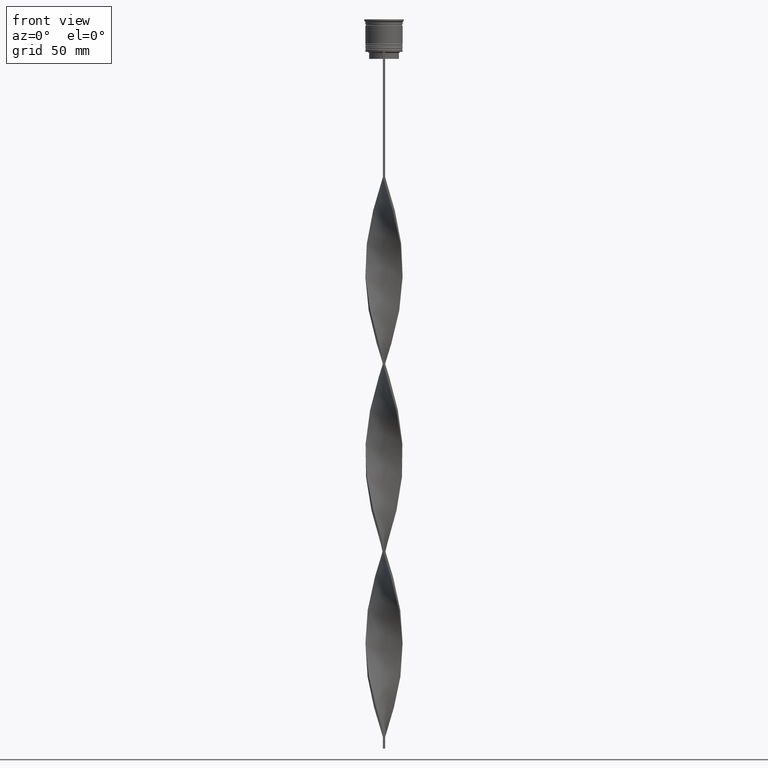
[diagram: clean part render]
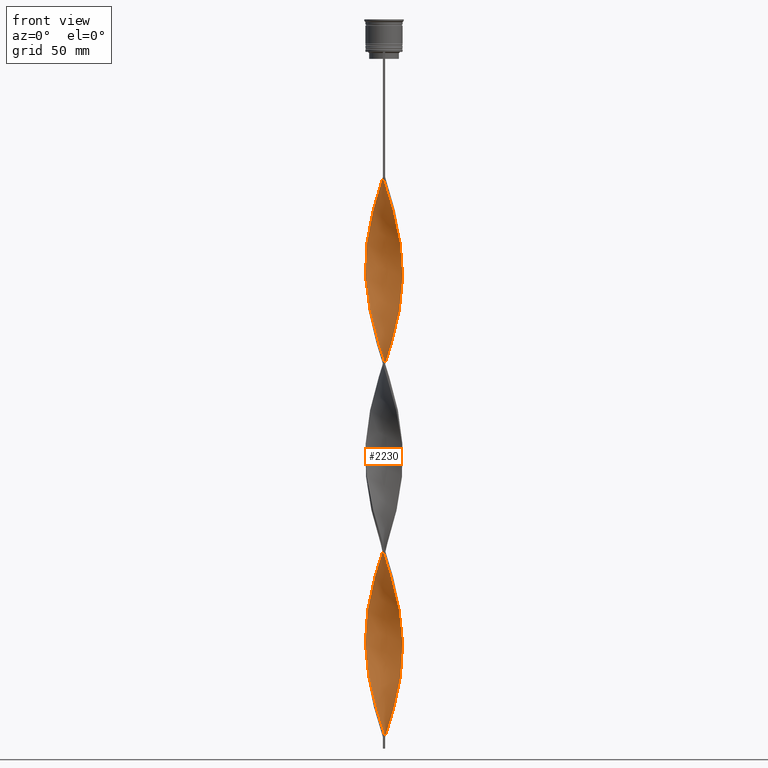
[diagram: same view with one face highlighted and labeled with its STEP entity id]
A machine part, front view. The second image highlights one B-rep face of the part: STEP entity #2230.
In plain terms, the highlighted face is a freeform B-spline surface patch.
Its self-contained STEP definition (entity closure, byte-faithful):
#6 = CARTESIAN_POINT ( 'NONE',  ( 4.077427260010560772, 6.901056943637172481, -136.2833333333333314 ) ) ;
#11 = CARTESIAN_POINT ( 'NONE',  ( 2.947664213147157763, 7.453943633173757632, -300.9666666666666401 ) ) ;
#23 = CARTESIAN_POINT ( 'NONE',  ( -7.823289492240988352, 1.745319890619417613, -184.4833333333333201 ) ) ;
#29 = CARTESIAN_POINT ( 'NONE',  ( -7.920097061150128681, -1.385649445451604844, -194.5250000000000341 ) ) ;
#36 = CARTESIAN_POINT ( 'NONE',  ( 0.4999999999999989453, -7.999999999999996447, -309.0000000000000000 ) ) ;
#46 = CARTESIAN_POINT ( 'NONE',  ( 7.979723957281222191, 0.7576315500242781775, -112.1833333333333229 ) ) ;
#49 = CARTESIAN_POINT ( 'NONE',  ( -0.4999999999999998890, -8.000000000000003553, -228.6666666666666856 ) ) ;
#65 = CARTESIAN_POINT ( 'NONE',  ( 4.830271518912642392, -6.427786469485481824, -246.7416666666667027 ) ) ;
#70 = CARTESIAN_POINT ( 'NONE',  ( -5.106790515527257490, 6.178243328853340266, -84.06666666666667709 ) ) ;
#83 = CARTESIAN_POINT ( 'NONE',  ( 6.010407640085657199, 5.303300858899108405, -288.9166666666666856 ) ) ;
#88 = CARTESIAN_POINT ( 'NONE',  ( -2.607565948252396737, -7.605824193947274381, -138.2916666666667140 ) ) ;
#106 = CARTESIAN_POINT ( 'NONE',  ( -6.766028581145818954, -4.297773521152311815, -204.5666666666666629 ) ) ;
#110 = CARTESIAN_POINT ( 'NONE',  ( -0.7576315500242785106, -7.979723957281213309, -144.3166666666666629 ) ) ;
#122 = CARTESIAN_POINT ( 'NONE',  ( -3.534302299652427592, 7.221957428453224637, -78.04166666666667140 ) ) ;
#124 = CARTESIAN_POINT ( 'NONE',  ( 7.104270692806157861, 3.765275523391985679, -282.8916666666667084 ) ) ;
#129 = CARTESIAN_POINT ( 'NONE',  ( -6.766028581145814513, 4.297773521152309151, -92.09999999999999432 ) ) ;
#140 = CARTESIAN_POINT ( 'NONE',  ( 7.762960627548706860, 1.996607696852002789, -116.2000000000000028 ) ) ;
#143 = CARTESIAN_POINT ( 'NONE',  ( -3.186420735822189432, -7.355047443376712124, -136.2833333333333314 ) ) ;
#145 = CARTESIAN_POINT ( 'NONE',  ( -7.979723957281220414, -0.7576315500242771783, -192.5166666666666799 ) ) ;
#150 = CARTESIAN_POINT ( 'NONE',  ( -1.996607696852002345, -7.762960627548698866, -140.3000000000000114 ) ) ;
#162 = CARTESIAN_POINT ( 'NONE',  ( 7.920097061150128681, 1.385649445451609285, -114.1916666666666771 ) ) ;
#165 = CARTESIAN_POINT ( 'NONE',  ( 7.979723957281213309, -0.7576315500242789547, -184.4833333333333201 ) ) ;
#177 = CARTESIAN_POINT ( 'NONE',  ( 4.297773521152310927, 6.766028581145813625, -212.6000000000000227 ) ) ;
#186 = CARTESIAN_POINT ( 'NONE',  ( -0.7576315500242776224, 7.979723957281220414, -152.3499999999999943 ) ) ;
#189 = CARTESIAN_POINT ( 'NONE',  ( -5.106790515527257490, 6.178243328853340266, -84.06666666666667709 ) ) ;
#196 = CARTESIAN_POINT ( 'NONE',  ( -7.685929837894279970, -2.361026126641882605, -274.8583333333332916 ) ) ;
#206 = CARTESIAN_POINT ( 'NONE',  ( -1.385649445451609063, -7.920097061150122464, -142.3083333333333371 ) ) ;
#216 = CARTESIAN_POINT ( 'NONE',  ( -4.297773521152310039, -6.766028581145813625, -292.9333333333333371 ) ) ;
#224 = CARTESIAN_POINT ( 'NONE',  ( -7.685929837894279970, -2.361026126641882605, -274.8583333333332916 ) ) ;
#235 = CARTESIAN_POINT ( 'NONE',  ( -4.620552220368685958, 6.580156458821110554, -242.7250000000000227 ) ) ;
#247 = CARTESIAN_POINT ( 'NONE',  ( 2.607565948252400734, 7.605824193947273493, -218.6250000000000284 ) ) ;
#248 = CARTESIAN_POINT ( 'NONE',  ( -0.4999999999999998890, -8.000000000000003553, -68.00000000000000000 ) ) ;
#250 = VERTEX_POINT ( 'NONE', #1954 ) ;
#255 = CARTESIAN_POINT ( 'NONE',  ( -3.186420735822189432, -7.355047443376712124, -296.9499999999999886 ) ) ;
#258 = CARTESIAN_POINT ( 'NONE',  ( 7.960649146587693181, -1.129613654596948624, -106.1583333333333456 ) ) ;
#260 = ORIENTED_EDGE ( 'NONE', *, *, #1967, .F. ) ;
#267 = CARTESIAN_POINT ( 'NONE',  ( 4.297773521152310927, 6.766028581145813625, -212.6000000000000227 ) ) ;
#268 =( BOUNDED_CURVE ( )  B_SPLINE_CURVE ( 2, ( #1978, #408, #1658, #737, #2687, #122, #3315, #1372, #189, #3673, #1088, #760, #2059, #3294, #2725, #2020, #3336, #1124, #4005, #3045, #452, #2325, #2350, #3383, #1066, #2367, #2386, #3613, #516, #2641, #535, #1700, #2979, #842, #143, #1393, #3947, #206, #3636, #491, #3699, #2659, #1743, #2961, #3986, #780, #3926, #2040, #2107, #471, #1763, #3026, #1718, #1107, #824, #2998, #3364, #3654, #165, #2087, #1417, #3968, #1454, #1148, #1436, #2706, #799, #2415, #1251, #554, #2146, #2751, #267, #3803, #947, #247, #1780, #285, #3430, #3404, #2475, #1801, #860, #2839, #1233, #907, #579, #3738, #3784, #2774, #3064, #882, #1480, #1518, #2169, #2208, #1535, #3449, #3092, #3765, #2517, #4114, #2792, #224, #3493, #4032, #1171, #2127, #1500, #4051, #2434, #2494, #3721, #1189, #2814, #925, #2452, #1826, #3112, #4071, #1210 ),
 .UNSPECIFIED., .F., .T. ) 
 B_SPLINE_CURVE_WITH_KNOTS ( ( 3, 2, 2, 2, 2, 2, 2, 2, 2, 2, 2, 2, 2, 2, 2, 2, 2, 2, 2, 2, 2, 2, 2, 2, 2, 2, 2, 2, 2, 2, 2, 2, 2, 2, 2, 2, 2, 2, 2, 2, 2, 2, 2, 2, 2, 2, 2, 2, 2, 2, 2, 2, 2, 2, 2, 2, 2, 2, 2, 2, 3 ),
 ( 0.000000000000000000, 0.01250000000000000243, 0.02500000000000000486, 0.03749999999999999861, 0.05000000000000000971, 0.06250000000000000000, 0.07499999999999999722, 0.08749999999999998057, 0.1000000000000000194, 0.1125000000000000028, 0.1250000000000000000, 0.1375000000000000111, 0.1499999999999999944, 0.1625000000000000056, 0.1749999999999999611, 0.1875000000000000000, 0.2000000000000000389, 0.2124999999999999944, 0.2250000000000000056, 0.2374999999999999611, 0.2500000000000000000, 0.2625000000000000111, 0.2750000000000000222, 0.2874999999999999778, 0.2999999999999999889, 0.3125000000000000000, 0.3250000000000000111, 0.3375000000000000777, 0.3499999999999999223, 0.3624999999999999889, 0.3750000000000000000, 0.3875000000000000111, 0.4000000000000000777, 0.4124999999999999223, 0.4249999999999999889, 0.4375000000000000000, 0.4500000000000000111, 0.4625000000000000777, 0.4749999999999999223, 0.4874999999999999889, 0.5000000000000000000, 0.5124999999999999556, 0.5250000000000000222, 0.5374999999999999778, 0.5500000000000000444, 0.5625000000000000000, 0.5749999999999999556, 0.5875000000000000222, 0.5999999999999999778, 0.6125000000000000444, 0.6250000000000000000, 0.6374999999999999556, 0.6500000000000000222, 0.6624999999999999778, 0.6750000000000001554, 0.6875000000000000000, 0.6999999999999998446, 0.7125000000000000222, 0.7249999999999999778, 0.7375000000000001554, 0.7500000000000000000 ),
 .UNSPECIFIED. ) 
 CURVE ( )  GEOMETRIC_REPRESENTATION_ITEM ( )  RATIONAL_B_SPLINE_CURVE ( ( 1.000000000000000000, 0.9969173337331279638, 1.000000000000000000, 0.9969173337331279638, 1.000000000000000000, 0.9969173337331279638, 1.000000000000000000, 0.9969173337331279638, 1.000000000000000000, 0.9969173337331279638, 1.000000000000000000, 0.9969173337331279638, 1.000000000000000000, 0.9969173337331279638, 1.000000000000000000, 0.9969173337331279638, 1.000000000000000000, 0.9969173337331279638, 1.000000000000000000, 0.9969173337331279638, 1.000000000000000000, 0.9969173337331279638, 1.000000000000000000, 0.9969173337331279638, 1.000000000000000000, 0.9969173337331279638, 1.000000000000000000, 0.9969173337331279638, 1.000000000000000000, 0.9969173337331279638, 1.000000000000000000, 0.9969173337331279638, 1.000000000000000000, 0.9969173337331279638, 1.000000000000000000, 0.9969173337331279638, 1.000000000000000000, 0.9969173337331279638, 1.000000000000000000, 0.9969173337331279638, 1.000000000000000000, 0.9969173337331279638, 1.000000000000000000, 0.9969173337331279638, 1.000000000000000000, 0.9969173337331279638, 1.000000000000000000, 0.9969173337331279638, 1.000000000000000000, 0.9969173337331279638, 1.000000000000000000, 0.9969173337331279638, 1.000000000000000000, 0.9969173337331279638, 1.000000000000000000, 0.9969173337331279638, 1.000000000000000000, 0.9969173337331279638, 1.000000000000000000, 0.9969173337331279638, 1.000000000000000000, 0.9969173337331279638, 1.000000000000000000, 0.9969173337331279638, 1.000000000000000000, 0.9969173337331279638, 1.000000000000000000, 0.9969173337331279638, 1.000000000000000000, 0.9969173337331279638, 1.000000000000000000, 0.9969173337331279638, 1.000000000000000000, 0.9969173337331279638, 1.000000000000000000, 0.9969173337331279638, 1.000000000000000000, 0.9969173337331279638, 1.000000000000000000, 0.9969173337331279638, 1.000000000000000000, 0.9969173337331279638, 1.000000000000000000, 0.9969173337331279638, 1.000000000000000000, 0.9969173337331279638, 1.000000000000000000, 0.9969173337331279638, 1.000000000000000000, 0.9969173337331279638, 1.000000000000000000, 0.9969173337331279638, 1.000000000000000000, 0.9969173337331279638, 1.000000000000000000, 0.9969173337331279638, 1.000000000000000000, 0.9969173337331279638, 1.000000000000000000, 0.9969173337331279638, 1.000000000000000000, 0.9969173337331279638, 1.000000000000000000, 0.9969173337331279638, 1.000000000000000000, 0.9969173337331279638, 1.000000000000000000, 0.9969173337331279638, 1.000000000000000000, 0.9969173337331279638, 1.000000000000000000, 0.9969173337331279638, 1.000000000000000000, 0.9969173337331279638, 1.000000000000000000, 0.9969173337331279638, 1.000000000000000000, 0.9969173337331279638, 1.000000000000000000, 0.9969173337331279638, 1.000000000000000000 ) ) 
 REPRESENTATION_ITEM ( '' )  );
#274 = CARTESIAN_POINT ( 'NONE',  ( 0.5000000000000008882, 8.000000000000003553, -148.3333333333333428 ) ) ;
#277 = CARTESIAN_POINT ( 'NONE',  ( -6.178243328853344707, 5.106790515527261931, -172.4333333333333371 ) ) ;
#285 = CARTESIAN_POINT ( 'NONE',  ( 1.385649445451606399, 7.920097061150122464, -222.6416666666667084 ) ) ;
#286 = DIRECTION ( 'NONE',  ( 0.000000000000000000, 1.000000000000000000, 0.000000000000000000 ) ) ;
#292 = CARTESIAN_POINT ( 'NONE',  ( 1.129613654596949068, 7.960649146587693181, -146.3250000000000171 ) ) ;
#297 = CARTESIAN_POINT ( 'NONE',  ( 7.762960627548706860, 1.996607696852002789, -276.8666666666667311 ) ) ;
#317 = CARTESIAN_POINT ( 'NONE',  ( 0.7576315500242786216, -7.979723957281222191, -72.01666666666667993 ) ) ;
#320 = CARTESIAN_POINT ( 'NONE',  ( 7.685929837894286187, -2.361026126641885270, -262.8083333333332803 ) ) ;
#335 = CARTESIAN_POINT ( 'NONE',  ( -6.901056943637172481, 4.077427260010560772, -176.4499999999999886 ) ) ;
#340 = CARTESIAN_POINT ( 'NONE',  ( 0.7576315500242786216, -7.979723957281222191, -232.6833333333333371 ) ) ;
#350 = CARTESIAN_POINT ( 'NONE',  ( -7.453943633173757632, 2.947664213147157763, -180.4666666666666686 ) ) ;
#356 = CARTESIAN_POINT ( 'NONE',  ( -2.361026126641883049, -7.685929837894287076, -222.6416666666667084 ) ) ;
#375 = CARTESIAN_POINT ( 'NONE',  ( -5.106790515527262819, -6.178243328853344707, -212.6000000000000227 ) ) ;
#380 = CARTESIAN_POINT ( 'NONE',  ( -4.077427260010556331, 6.901056943637167151, -80.05000000000001137 ) ) ;
#393 = CARTESIAN_POINT ( 'NONE',  ( -2.947664213147158652, -7.453943633173757632, -220.6333333333333542 ) ) ;
#397 = CARTESIAN_POINT ( 'NONE',  ( -7.979723957281215085, 0.7576315500242779555, -104.1500000000000057 ) ) ;
#408 = CARTESIAN_POINT ( 'NONE',  ( -1.129613654596947514, 7.960649146587686964, -70.00833333333335418 ) ) ;
#410 = CARTESIAN_POINT ( 'NONE',  ( 6.766028581145818954, 4.297773521152312703, -284.9000000000000341 ) ) ;
#414 = CARTESIAN_POINT ( 'NONE',  ( 7.605824193947272605, -2.607565948252400290, -178.4583333333333144 ) ) ;
#437 = CARTESIAN_POINT ( 'NONE',  ( 7.920097061150129569, 1.385649445451609285, -274.8583333333332916 ) ) ;
#442 = CARTESIAN_POINT ( 'NONE',  ( -7.221957428453224637, -3.534302299652427148, -118.2083333333333144 ) ) ;
#449 = CARTESIAN_POINT ( 'NONE',  ( 5.776330198885578859, -5.593028810685832575, -90.09166666666666856 ) ) ;
#452 = CARTESIAN_POINT ( 'NONE',  ( -7.999999999999996447, -0.4999999999999993339, -108.1666666666666714 ) ) ;
#454 = CARTESIAN_POINT ( 'NONE',  ( 6.178243328853345595, -5.106790515527261043, -252.7666666666667084 ) ) ;
#459 = CARTESIAN_POINT ( 'NONE',  ( 7.960649146587686964, 1.129613654596949734, -190.5083333333333826 ) ) ;
#468 = CARTESIAN_POINT ( 'NONE',  ( 3.534302299652431145, 7.221957428453231742, -138.2916666666667140 ) ) ;
#471 = CARTESIAN_POINT ( 'NONE',  ( 5.593028810685827246, -5.776330198885574418, -166.4083333333333599 ) ) ;
#477 = CARTESIAN_POINT ( 'NONE',  ( -5.593028810685828134, 5.776330198885573530, -246.7416666666666742 ) ) ;
#488 = CARTESIAN_POINT ( 'NONE',  ( 7.605824193947281486, 2.607565948252398069, -118.2083333333333144 ) ) ;
#491 = CARTESIAN_POINT ( 'NONE',  ( -0.1296136545969484577, -8.039350853412308595, -146.3250000000000171 ) ) ;
#503 = CARTESIAN_POINT ( 'NONE',  ( -0.4999999999999998890, 7.999999999999996447, -228.6666666666666856 ) ) ;
#516 = CARTESIAN_POINT ( 'NONE',  ( -6.178243328853340266, -5.106790515527256602, -124.2333333333333343 ) ) ;
#525 = CARTESIAN_POINT ( 'NONE',  ( -6.901056943637167151, -4.077427260010556331, -280.8833333333333826 ) ) ;
#535 = CARTESIAN_POINT ( 'NONE',  ( -5.303300858899104853, -6.010407640085650982, -128.2500000000000000 ) ) ;
#554 = CARTESIAN_POINT ( 'NONE',  ( 5.776330198885571754, 5.593028810685829910, -206.5750000000000171 ) ) ;
#555 =( BOUNDED_CURVE ( )  B_SPLINE_CURVE ( 2, ( #3809, #586, #317, #2864, #2799, #2546, #1568, #603, #1277, #3137, #1878, #1240, #2827, #1834, #1222, #3521, #2485, #3475, #626, #4081, #3199, #3164, #46, #1298, #1855, #2159, #650, #2502, #3774, #2847, #2886, #3118, #667, #4105, #6, #2566, #2238, #915, #3792, #292, #274, #2175, #1258, #2524, #3853, #1903, #955, #3456, #2217, #1603, #1548, #932, #1919, #2191, #335, #3501, #350, #3184, #23, #3835, #975, #2254, #145, #2000, #2963, #3538, #3596, #2662, #106, #991, #683, #2024, #375, #708, #3240, #1980, #393, #1937, #763, #1645, #3928, #3220, #2307, #1686, #2922, #2904, #1356, #1314, #3297, #65, #2623, #3279, #454, #1068, #3559, #3911, #2582, #1626, #1335, #3873, #739, #1702, #1049, #437, #1009, #2270, #1960, #124, #410, #1374, #83, #2603, #2643, #3893, #1031, #1395, #2290, #1660, #2328, #3577, #3618 ),
 .UNSPECIFIED., .F., .T. ) 
 B_SPLINE_CURVE_WITH_KNOTS ( ( 3, 2, 2, 2, 2, 2, 2, 2, 2, 2, 2, 2, 2, 2, 2, 2, 2, 2, 2, 2, 2, 2, 2, 2, 2, 2, 2, 2, 2, 2, 2, 2, 2, 2, 2, 2, 2, 2, 2, 2, 2, 2, 2, 2, 2, 2, 2, 2, 2, 2, 2, 2, 2, 2, 2, 2, 2, 2, 2, 2, 3 ),
 ( 0.000000000000000000, 0.01250000000000000243, 0.02500000000000000486, 0.03749999999999999861, 0.05000000000000000971, 0.06250000000000000000, 0.07499999999999999722, 0.08749999999999998057, 0.1000000000000000194, 0.1125000000000000028, 0.1250000000000000000, 0.1375000000000000111, 0.1499999999999999944, 0.1625000000000000056, 0.1749999999999999611, 0.1875000000000000000, 0.2000000000000000389, 0.2124999999999999944, 0.2250000000000000056, 0.2374999999999999611, 0.2500000000000000000, 0.2625000000000000111, 0.2750000000000000222, 0.2874999999999999778, 0.2999999999999999889, 0.3125000000000000000, 0.3250000000000000111, 0.3375000000000000777, 0.3499999999999999223, 0.3624999999999999889, 0.3750000000000000000, 0.3875000000000000111, 0.4000000000000000777, 0.4124999999999999223, 0.4249999999999999889, 0.4375000000000000000, 0.4500000000000000111, 0.4625000000000000777, 0.4749999999999999223, 0.4874999999999999889, 0.5000000000000000000, 0.5124999999999999556, 0.5250000000000000222, 0.5374999999999999778, 0.5500000000000000444, 0.5625000000000000000, 0.5749999999999999556, 0.5875000000000000222, 0.5999999999999999778, 0.6125000000000000444, 0.6250000000000000000, 0.6374999999999999556, 0.6500000000000000222, 0.6624999999999999778, 0.6750000000000001554, 0.6875000000000000000, 0.6999999999999998446, 0.7125000000000000222, 0.7249999999999999778, 0.7375000000000001554, 0.7500000000000000000 ),
 .UNSPECIFIED. ) 
 CURVE ( )  GEOMETRIC_REPRESENTATION_ITEM ( )  RATIONAL_B_SPLINE_CURVE ( ( 1.000000000000000000, 0.9969173337331279638, 1.000000000000000000, 0.9969173337331279638, 1.000000000000000000, 0.9969173337331279638, 1.000000000000000000, 0.9969173337331279638, 1.000000000000000000, 0.9969173337331279638, 1.000000000000000000, 0.9969173337331279638, 1.000000000000000000, 0.9969173337331279638, 1.000000000000000000, 0.9969173337331279638, 1.000000000000000000, 0.9969173337331279638, 1.000000000000000000, 0.9969173337331279638, 1.000000000000000000, 0.9969173337331279638, 1.000000000000000000, 0.9969173337331279638, 1.000000000000000000, 0.9969173337331279638, 1.000000000000000000, 0.9969173337331279638, 1.000000000000000000, 0.9969173337331279638, 1.000000000000000000, 0.9969173337331279638, 1.000000000000000000, 0.9969173337331279638, 1.000000000000000000, 0.9969173337331279638, 1.000000000000000000, 0.9969173337331279638, 1.000000000000000000, 0.9969173337331279638, 1.000000000000000000, 0.9969173337331279638, 1.000000000000000000, 0.9969173337331279638, 1.000000000000000000, 0.9969173337331279638, 1.000000000000000000, 0.9969173337331279638, 1.000000000000000000, 0.9969173337331279638, 1.000000000000000000, 0.9969173337331279638, 1.000000000000000000, 0.9969173337331279638, 1.000000000000000000, 0.9969173337331279638, 1.000000000000000000, 0.9969173337331279638, 1.000000000000000000, 0.9969173337331279638, 1.000000000000000000, 0.9969173337331279638, 1.000000000000000000, 0.9969173337331279638, 1.000000000000000000, 0.9969173337331279638, 1.000000000000000000, 0.9969173337331279638, 1.000000000000000000, 0.9969173337331279638, 1.000000000000000000, 0.9969173337331279638, 1.000000000000000000, 0.9969173337331279638, 1.000000000000000000, 0.9969173337331279638, 1.000000000000000000, 0.9969173337331279638, 1.000000000000000000, 0.9969173337331279638, 1.000000000000000000, 0.9969173337331279638, 1.000000000000000000, 0.9969173337331279638, 1.000000000000000000, 0.9969173337331279638, 1.000000000000000000, 0.9969173337331279638, 1.000000000000000000, 0.9969173337331279638, 1.000000000000000000, 0.9969173337331279638, 1.000000000000000000, 0.9969173337331279638, 1.000000000000000000, 0.9969173337331279638, 1.000000000000000000, 0.9969173337331279638, 1.000000000000000000, 0.9969173337331279638, 1.000000000000000000, 0.9969173337331279638, 1.000000000000000000, 0.9969173337331279638, 1.000000000000000000, 0.9969173337331279638, 1.000000000000000000, 0.9969173337331279638, 1.000000000000000000, 0.9969173337331279638, 1.000000000000000000, 0.9969173337331279638, 1.000000000000000000, 0.9969173337331279638, 1.000000000000000000, 0.9969173337331279638, 1.000000000000000000, 0.9969173337331279638, 1.000000000000000000, 0.9969173337331279638, 1.000000000000000000 ) ) 
 REPRESENTATION_ITEM ( '' )  );
#567 = CARTESIAN_POINT ( 'NONE',  ( -5.776330198885573530, -5.593028810685827246, -286.9083333333334167 ) ) ;
#571 = CARTESIAN_POINT ( 'NONE',  ( -7.823289492240988352, 1.745319890619417613, -184.4833333333333201 ) ) ;
#579 = CARTESIAN_POINT ( 'NONE',  ( -4.077427260010556331, 6.901056943637167151, -240.7166666666666686 ) ) ;
#586 = CARTESIAN_POINT ( 'NONE',  ( 0.1296136545969480414, -8.039350853412315701, -70.00833333333335418 ) ) ;
#590 = CARTESIAN_POINT ( 'NONE',  ( -3.765275523391985235, 7.104270692806158749, -162.3916666666666799 ) ) ;
#603 = CARTESIAN_POINT ( 'NONE',  ( 3.765275523391985679, -7.104270692806157861, -82.05833333333335133 ) ) ;
#607 = CARTESIAN_POINT ( 'NONE',  ( 7.979723957281222191, 0.7576315500242781775, -272.8500000000000227 ) ) ;
#626 = CARTESIAN_POINT ( 'NONE',  ( 7.823289492240990128, -1.745319890619416725, -104.1500000000000057 ) ) ;
#633 = CARTESIAN_POINT ( 'NONE',  ( 5.303300858899110182, -6.010407640085657199, -248.7500000000000000 ) ) ;
#650 = CARTESIAN_POINT ( 'NONE',  ( 7.355047443376720118, 3.186420735822192096, -120.2166666666666686 ) ) ;
#653 = CARTESIAN_POINT ( 'NONE',  ( -7.605824193947280598, -2.607565948252400290, -198.5416666666667140 ) ) ;
#667 = CARTESIAN_POINT ( 'NONE',  ( 5.106790515527261931, 6.178243328853344707, -132.2666666666666799 ) ) ;
#671 = CARTESIAN_POINT ( 'NONE',  ( -1.129613654596953509, -7.960649146587693181, -226.6583333333333883 ) ) ;
#683 = CARTESIAN_POINT ( 'NONE',  ( -6.010407640085658088, -5.303300858899107517, -208.5833333333333428 ) ) ;
#691 = CARTESIAN_POINT ( 'NONE',  ( -7.960649146587693181, 1.129613654596953065, -186.4916666666667027 ) ) ;
#708 = CARTESIAN_POINT ( 'NONE',  ( -4.620552220368688623, -6.580156458821115883, -214.6083333333333769 ) ) ;
#711 = CARTESIAN_POINT ( 'NONE',  ( 4.077427260010555443, -6.901056943637167151, -160.3833333333333258 ) ) ;
#724 = CARTESIAN_POINT ( 'NONE',  ( 1.745319890619414060, -7.823289492240984799, -152.3499999999999943 ) ) ;
#737 = CARTESIAN_POINT ( 'NONE',  ( -2.361026126641883049, 7.685929837894279082, -74.02500000000000568 ) ) ;
#739 = CARTESIAN_POINT ( 'NONE',  ( 8.000000000000003553, -0.5000000000000004441, -268.8333333333333712 ) ) ;
#742 = CARTESIAN_POINT ( 'NONE',  ( -6.010407640085651870, 5.303300858899104853, -88.08333333333334281 ) ) ;
#754 = CARTESIAN_POINT ( 'NONE',  ( 7.453943633173757632, -2.947664213147156875, -100.1333333333333400 ) ) ;
#760 = CARTESIAN_POINT ( 'NONE',  ( -6.427786469485477383, 4.830271518912637951, -90.09166666666666856 ) ) ;
#763 = CARTESIAN_POINT ( 'NONE',  ( -1.745319890619418057, -7.823289492240988352, -224.6500000000000057 ) ) ;
#769 = CARTESIAN_POINT ( 'NONE',  ( 8.039350853412310371, -0.1296136545969525100, -186.4916666666667027 ) ) ;
#777 = CARTESIAN_POINT ( 'NONE',  ( -0.4999999999999998890, -8.000000000000003553, -68.00000000000000000 ) ) ;
#780 = CARTESIAN_POINT ( 'NONE',  ( 3.534302299652426704, -7.221957428453226413, -158.3750000000000284 ) ) ;
#789 = CARTESIAN_POINT ( 'NONE',  ( -2.947664213147154655, 7.453943633173751415, -76.03333333333334565 ) ) ;
#796 = CARTESIAN_POINT ( 'NONE',  ( 1.385649445451609729, -7.920097061150128681, -74.02500000000000568 ) ) ;
#799 = CARTESIAN_POINT ( 'NONE',  ( 6.901056943637168040, 4.077427260010555443, -200.5500000000000114 ) ) ;
#809 = CARTESIAN_POINT ( 'NONE',  ( -6.178243328853340266, -5.106790515527256602, -284.9000000000000341 ) ) ;
#824 = CARTESIAN_POINT ( 'NONE',  ( 7.355047443376712124, -3.186420735822189876, -176.4499999999999886 ) ) ;
#834 = CARTESIAN_POINT ( 'NONE',  ( 6.580156458821112331, 4.620552220368682406, -202.5583333333333371 ) ) ;
#842 = CARTESIAN_POINT ( 'NONE',  ( -3.765275523391983015, -7.104270692806150755, -134.2750000000000341 ) ) ;
#848 = CARTESIAN_POINT ( 'NONE',  ( -7.355047443376712124, 3.186420735822188988, -256.7833333333333599 ) ) ;
#860 = CARTESIAN_POINT ( 'NONE',  ( -1.745319890619415171, 7.823289492240983023, -232.6833333333333371 ) ) ;
#870 = CARTESIAN_POINT ( 'NONE',  ( 0.4999999999999989453, -7.999999999999996447, -309.0000000000000000 ) ) ;
#873 = CARTESIAN_POINT ( 'NONE',  ( -7.221957428453229966, 3.534302299652434698, -178.4583333333333144 ) ) ;
#882 = CARTESIAN_POINT ( 'NONE',  ( -6.427786469485477383, 4.830271518912637951, -250.7583333333332973 ) ) ;
#892 = CARTESIAN_POINT ( 'NONE',  ( 0.1296136545969529541, 8.039350853412310371, -226.6583333333333883 ) ) ;
#898 = CARTESIAN_POINT ( 'NONE',  ( 1.129613654596949290, 7.960649146587693181, -146.3250000000000171 ) ) ;
#907 = CARTESIAN_POINT ( 'NONE',  ( -3.534302299652427592, 7.221957428453224637, -238.7083333333333144 ) ) ;
#915 = CARTESIAN_POINT ( 'NONE',  ( 2.361026126641885714, 7.685929837894286187, -142.3083333333333371 ) ) ;
#918 = CARTESIAN_POINT ( 'NONE',  ( -6.427786469485482712, -4.830271518912645057, -206.5750000000000171 ) ) ;
#925 = CARTESIAN_POINT ( 'NONE',  ( -2.607565948252396737, -7.605824193947275269, -298.9583333333333712 ) ) ;
#932 = CARTESIAN_POINT ( 'NONE',  ( -5.776330198885575307, 5.593028810685836127, -170.4250000000000398 ) ) ;
#935 = CARTESIAN_POINT ( 'NONE',  ( -4.620552220368688623, -6.580156458821115883, -214.6083333333333769 ) ) ;
#947 = CARTESIAN_POINT ( 'NONE',  ( 3.186420735822190320, 7.355047443376712124, -216.6166666666666742 ) ) ;
#955 = CARTESIAN_POINT ( 'NONE',  ( -3.186420735822190764, 7.355047443376720118, -160.3833333333333258 ) ) ;
#961 = CARTESIAN_POINT ( 'NONE',  ( 4.297773521152313592, -6.766028581145818954, -244.7333333333333201 ) ) ;
#975 = CARTESIAN_POINT ( 'NONE',  ( -8.000000000000003553, 0.5000000000000014433, -188.5000000000000000 ) ) ;
#978 = CARTESIAN_POINT ( 'NONE',  ( 7.960649146587693181, -1.129613654596948624, -266.8249999999999886 ) ) ;
#985 = ORIENTED_EDGE ( 'NONE', *, *, #2273, .F. ) ;
#991 = CARTESIAN_POINT ( 'NONE',  ( -6.427786469485481824, -4.830271518912644169, -206.5750000000000171 ) ) ;
#994 = CARTESIAN_POINT ( 'NONE',  ( -1.129613654596947514, 7.960649146587686964, -70.00833333333335418 ) ) ;
#1009 = CARTESIAN_POINT ( 'NONE',  ( 7.762960627548706860, 1.996607696852002789, -276.8666666666667311 ) ) ;
#1013 = CARTESIAN_POINT ( 'NONE',  ( 7.999999999999996447, 0.4999999999999983902, -188.5000000000000000 ) ) ;
#1031 = CARTESIAN_POINT ( 'NONE',  ( 4.077427260010560772, 6.901056943637172481, -296.9499999999999886 ) ) ;
#1035 = CARTESIAN_POINT ( 'NONE',  ( -5.776330198885573530, -5.593028810685827246, -126.2416666666666600 ) ) ;
#1049 = CARTESIAN_POINT ( 'NONE',  ( 7.979723957281222191, 0.7576315500242781775, -272.8500000000000227 ) ) ;
#1054 = CARTESIAN_POINT ( 'NONE',  ( -7.605824193947274381, 2.607565948252396293, -98.12500000000002842 ) ) ;
#1063 = CARTESIAN_POINT ( 'NONE',  ( -4.830271518912642392, 6.427786469485483600, -166.4083333333333599 ) ) ;
#1066 = CARTESIAN_POINT ( 'NONE',  ( -7.453943633173752303, -2.947664213147154655, -116.2000000000000028 ) ) ;
#1068 = CARTESIAN_POINT ( 'NONE',  ( 6.580156458821114995, -4.620552220368690399, -254.7749999999999773 ) ) ;
#1073 = CARTESIAN_POINT ( 'NONE',  ( 6.427786469485475607, -4.830271518912642392, -170.4250000000000398 ) ) ;
#1083 = VECTOR ( 'NONE', #286, 1000.000000000000000 ) ;
#1085 = CARTESIAN_POINT ( 'NONE',  ( 8.000000000000003553, -0.5000000000000004441, -108.1666666666666714 ) ) ;
#1088 = CARTESIAN_POINT ( 'NONE',  ( -6.010407640085651870, 5.303300858899104853, -88.08333333333334281 ) ) ;
#1096 = CARTESIAN_POINT ( 'NONE',  ( 0.4999999999999989453, -7.999999999999996447, -148.3333333333333428 ) ) ;
#1098 = VERTEX_POINT ( 'NONE', #2029 ) ;
#1104 = CARTESIAN_POINT ( 'NONE',  ( -5.776330198885575307, 5.593028810685836127, -170.4250000000000398 ) ) ;
#1107 = CARTESIAN_POINT ( 'NONE',  ( 7.104270692806153420, -3.765275523391980794, -174.4416666666666629 ) ) ;
#1115 = CARTESIAN_POINT ( 'NONE',  ( -7.979723957281215085, 0.7576315500242779555, -264.8166666666667197 ) ) ;
#1124 = CARTESIAN_POINT ( 'NONE',  ( -7.920097061150122464, 1.385649445451608619, -102.1416666666666799 ) ) ;
#1134 = CARTESIAN_POINT ( 'NONE',  ( -5.106790515527257490, 6.178243328853340266, -244.7333333333333201 ) ) ;
#1148 = CARTESIAN_POINT ( 'NONE',  ( 7.685929837894280858, 2.361026126641878609, -194.5250000000000341 ) ) ;
#1158 = CARTESIAN_POINT ( 'NONE',  ( -0.1296136545969484577, -8.039350853412310371, -306.9916666666667311 ) ) ;
#1171 = CARTESIAN_POINT ( 'NONE',  ( -6.901056943637167151, -4.077427260010556331, -280.8833333333333826 ) ) ;
#1180 = CARTESIAN_POINT ( 'NONE',  ( 5.303300858899110182, -6.010407640085657199, -88.08333333333334281 ) ) ;
#1189 = CARTESIAN_POINT ( 'NONE',  ( -3.765275523391983015, -7.104270692806150755, -294.9416666666667197 ) ) ;
#1198 = CARTESIAN_POINT ( 'NONE',  ( -6.427786469485477383, 4.830271518912638840, -250.7583333333333258 ) ) ;
#1202 = CARTESIAN_POINT ( 'NONE',  ( 7.685929837894286187, -2.361026126641885270, -102.1416666666666941 ) ) ;
#1210 = CARTESIAN_POINT ( 'NONE',  ( 0.4999999999999989453, -7.999999999999996447, -309.0000000000000000 ) ) ;
#1222 = CARTESIAN_POINT ( 'NONE',  ( 6.901056943637172481, -4.077427260010559884, -96.11666666666667425 ) ) ;
#1226 = CARTESIAN_POINT ( 'NONE',  ( -4.077427260010561660, -6.901056943637172481, -216.6166666666666742 ) ) ;
#1233 = CARTESIAN_POINT ( 'NONE',  ( -2.947664213147154655, 7.453943633173751415, -236.6999999999999886 ) ) ;
#1240 = CARTESIAN_POINT ( 'NONE',  ( 5.776330198885578859, -5.593028810685832575, -90.09166666666666856 ) ) ;
#1243 = CARTESIAN_POINT ( 'NONE',  ( -6.010407640085658088, -5.303300858899107517, -208.5833333333333428 ) ) ;
#1251 = CARTESIAN_POINT ( 'NONE',  ( 6.178243328853342042, 5.106790515527255714, -204.5666666666666629 ) ) ;
#1258 = CARTESIAN_POINT ( 'NONE',  ( -0.7576315500242776224, 7.979723957281220414, -152.3499999999999943 ) ) ;
#1261 = CARTESIAN_POINT ( 'NONE',  ( 1.745319890619417169, 7.823289492240988352, -304.9833333333333485 ) ) ;
#1277 = CARTESIAN_POINT ( 'NONE',  ( 4.297773521152313592, -6.766028581145818954, -84.06666666666667709 ) ) ;
#1283 = CARTESIAN_POINT ( 'NONE',  ( 7.823289492240990128, -1.745319890619416725, -264.8166666666667197 ) ) ;
#1298 = CARTESIAN_POINT ( 'NONE',  ( 7.920097061150129569, 1.385649445451609285, -114.1916666666666771 ) ) ;
#1301 = CARTESIAN_POINT ( 'NONE',  ( -3.534302299652435142, -7.221957428453229966, -218.6250000000000568 ) ) ;
#1314 = CARTESIAN_POINT ( 'NONE',  ( 3.765275523391985679, -7.104270692806157861, -242.7250000000000227 ) ) ;
#1319 = CARTESIAN_POINT ( 'NONE',  ( 5.593028810685827246, -5.776330198885574418, -166.4083333333333599 ) ) ;
#1335 = CARTESIAN_POINT ( 'NONE',  ( 7.823289492240990128, -1.745319890619416725, -264.8166666666667197 ) ) ;
#1340 = CARTESIAN_POINT ( 'NONE',  ( 2.947664213147154211, -7.453943633173752303, -156.3666666666666458 ) ) ;
#1356 = CARTESIAN_POINT ( 'NONE',  ( 3.186420735822192096, -7.355047443376720118, -240.7166666666666686 ) ) ;
#1362 = CARTESIAN_POINT ( 'NONE',  ( -7.823289492240983023, -1.745319890619414727, -112.1833333333333229 ) ) ;
#1372 = CARTESIAN_POINT ( 'NONE',  ( -4.620552220368685958, 6.580156458821110554, -82.05833333333335133 ) ) ;
#1374 = CARTESIAN_POINT ( 'NONE',  ( 6.427786469485481824, 4.830271518912641504, -286.9083333333333599 ) ) ;
#1379 = CARTESIAN_POINT ( 'NONE',  ( 6.010407640085650982, -5.303300858899105741, -168.4166666666666572 ) ) ;
#1390 = CARTESIAN_POINT ( 'NONE',  ( 6.901056943637172481, -4.077427260010559884, -96.11666666666667425 ) ) ;
#1393 = CARTESIAN_POINT ( 'NONE',  ( -2.607565948252396737, -7.605824193947275269, -138.2916666666667140 ) ) ;
#1395 = CARTESIAN_POINT ( 'NONE',  ( 3.534302299652431145, 7.221957428453231742, -298.9583333333333712 ) ) ;
#1400 = CARTESIAN_POINT ( 'NONE',  ( -1.385649445451609285, -7.920097061150121576, -142.3083333333333371 ) ) ;
#1413 = CARTESIAN_POINT ( 'NONE',  ( 4.077427260010560772, 6.901056943637172481, -136.2833333333333314 ) ) ;
#1417 = CARTESIAN_POINT ( 'NONE',  ( 7.999999999999996447, 0.4999999999999983902, -188.5000000000000000 ) ) ;
#1425 = CARTESIAN_POINT ( 'NONE',  ( -6.766028581145814513, 4.297773521152309151, -252.7666666666667084 ) ) ;
#1436 = CARTESIAN_POINT ( 'NONE',  ( 7.453943633173752303, 2.947664213147153767, -196.5333333333333314 ) ) ;
#1444 = CARTESIAN_POINT ( 'NONE',  ( -3.765275523391983459, -7.104270692806151644, -294.9416666666667197 ) ) ;
#1454 = CARTESIAN_POINT ( 'NONE',  ( 7.823289492240984799, 1.745319890619413616, -192.5166666666666799 ) ) ;
#1467 = CARTESIAN_POINT ( 'NONE',  ( -7.762960627548698866, 1.996607696852001457, -260.8000000000000114 ) ) ;
#1480 = CARTESIAN_POINT ( 'NONE',  ( -6.766028581145814513, 4.297773521152309151, -252.7666666666667084 ) ) ;
#1494 = CARTESIAN_POINT ( 'NONE',  ( -3.186420735822190764, 7.355047443376720118, -160.3833333333333258 ) ) ;
#1500 = CARTESIAN_POINT ( 'NONE',  ( -6.178243328853340266, -5.106790515527256602, -284.9000000000000341 ) ) ;
#1507 = CARTESIAN_POINT ( 'NONE',  ( -0.7576315500242785106, -7.979723957281213309, -304.9833333333333485 ) ) ;
#1511 = CARTESIAN_POINT ( 'NONE',  ( 0.1296136545969480136, -8.039350853412315701, -70.00833333333335418 ) ) ;
#1518 = CARTESIAN_POINT ( 'NONE',  ( -7.104270692806150755, 3.765275523391983015, -254.7749999999999773 ) ) ;
#1528 = CARTESIAN_POINT ( 'NONE',  ( -7.355047443376721006, -3.186420735822190764, -200.5500000000000114 ) ) ;
#1535 = CARTESIAN_POINT ( 'NONE',  ( -7.762960627548698866, 1.996607696852001457, -260.8000000000000114 ) ) ;
#1548 = CARTESIAN_POINT ( 'NONE',  ( -5.303300858899108405, 6.010407640085658088, -168.4166666666666572 ) ) ;
#1553 = CARTESIAN_POINT ( 'NONE',  ( 7.355047443376720118, 3.186420735822192096, -280.8833333333333826 ) ) ;
#1568 = CARTESIAN_POINT ( 'NONE',  ( 3.186420735822192096, -7.355047443376720118, -80.05000000000001137 ) ) ;
#1570 = CARTESIAN_POINT ( 'NONE',  ( 3.534302299652431145, 7.221957428453231742, -298.9583333333334281 ) ) ;
#1589 = CARTESIAN_POINT ( 'NONE',  ( 7.453943633173757632, -2.947664213147156875, -260.8000000000000114 ) ) ;
#1603 = CARTESIAN_POINT ( 'NONE',  ( -4.830271518912641504, 6.427786469485482712, -166.4083333333333599 ) ) ;
#1611 = CARTESIAN_POINT ( 'NONE',  ( 6.427786469485482712, 4.830271518912642392, -286.9083333333334167 ) ) ;
#1616 = EDGE_LOOP ( 'NONE', ( #1920, #2784, #260, #985 ) ) ;
#1624 = B_SPLINE_CURVE_WITH_KNOTS ( 'NONE', 3,
 ( #2301, #3551, #1679, #3591 ),
 .UNSPECIFIED., .F., .F.,
 ( 4, 4 ),
 ( 0.000000000000000000, 1.000000000000000000 ),
 .UNSPECIFIED. ) ;
#1626 = CARTESIAN_POINT ( 'NONE',  ( 7.685929837894286187, -2.361026126641885270, -262.8083333333333371 ) ) ;
#1631 = CARTESIAN_POINT ( 'NONE',  ( -7.920097061150121576, 1.385649445451608841, -102.1416666666666941 ) ) ;
#1645 = CARTESIAN_POINT ( 'NONE',  ( -1.129613654596953509, -7.960649146587693181, -226.6583333333333883 ) ) ;
#1648 = CARTESIAN_POINT ( 'NONE',  ( -6.901056943637167151, -4.077427260010556331, -120.2166666666666686 ) ) ;
#1658 = CARTESIAN_POINT ( 'NONE',  ( -1.745319890619415171, 7.823289492240983023, -72.01666666666667993 ) ) ;
#1660 = CARTESIAN_POINT ( 'NONE',  ( 2.361026126641885714, 7.685929837894286187, -302.9750000000000227 ) ) ;
#1665 = CARTESIAN_POINT ( 'NONE',  ( 7.920097061150121576, -1.385649445451606177, -182.4749999999999943 ) ) ;
#1679 = CARTESIAN_POINT ( 'NONE',  ( 0.4999999999999995559, -2.666666666666663410, -309.0000000000000000 ) ) ;
#1686 = CARTESIAN_POINT ( 'NONE',  ( 1.385649445451609729, -7.920097061150129569, -234.6916666666666629 ) ) ;
#1690 = CARTESIAN_POINT ( 'NONE',  ( -3.186420735822189432, -7.355047443376712124, -136.2833333333333314 ) ) ;
#1697 = CARTESIAN_POINT ( 'NONE',  ( 0.5000000000000008882, 8.000000000000003553, -148.3333333333333428 ) ) ;
#1700 = CARTESIAN_POINT ( 'NONE',  ( -4.830271518912638840, -6.427786469485477383, -130.2583333333333542 ) ) ;
#1702 = CARTESIAN_POINT ( 'NONE',  ( 8.039350853412313924, 0.1296136545969474863, -270.8416666666666401 ) ) ;
#1706 = CARTESIAN_POINT ( 'NONE',  ( -7.685929837894279970, -2.361026126641882605, -114.1916666666666771 ) ) ;
#1718 = CARTESIAN_POINT ( 'NONE',  ( 6.766028581145813625, -4.297773521152310039, -172.4333333333333371 ) ) ;
#1724 = CARTESIAN_POINT ( 'NONE',  ( 0.7576315500242793988, 7.979723957281213309, -224.6500000000000057 ) ) ;
#1739 = CARTESIAN_POINT ( 'NONE',  ( 1.745319890619417169, 7.823289492240988352, -144.3166666666666629 ) ) ;
#1743 = CARTESIAN_POINT ( 'NONE',  ( 1.745319890619414060, -7.823289492240984799, -152.3499999999999943 ) ) ;
#1753 = CARTESIAN_POINT ( 'NONE',  ( -7.960649146587688740, -1.129613654596947070, -270.8416666666666401 ) ) ;
#1758 = CARTESIAN_POINT ( 'NONE',  ( 0.5000000000000008882, 8.000000000000003553, -309.0000000000000000 ) ) ;
#1763 = CARTESIAN_POINT ( 'NONE',  ( 6.010407640085650982, -5.303300858899105741, -168.4166666666666572 ) ) ;
#1773 = CARTESIAN_POINT ( 'NONE',  ( -4.830271518912639728, -6.427786469485477383, -290.9250000000000682 ) ) ;
#1780 = CARTESIAN_POINT ( 'NONE',  ( 1.996607696852003233, 7.762960627548698866, -220.6333333333333542 ) ) ;
#1787 = CARTESIAN_POINT ( 'NONE',  ( 2.607565948252400734, 7.605824193947272605, -218.6250000000000568 ) ) ;
#1801 = CARTESIAN_POINT ( 'NONE',  ( -1.129613654596947514, 7.960649146587686964, -230.6750000000000114 ) ) ;
#1809 = EDGE_CURVE ( 'NONE', #250, #1098, #4075, .T. ) ;
#1818 = CARTESIAN_POINT ( 'NONE',  ( 3.765275523391986123, -7.104270692806158749, -82.05833333333336554 ) ) ;
#1826 = CARTESIAN_POINT ( 'NONE',  ( -1.385649445451609063, -7.920097061150122464, -302.9750000000000227 ) ) ;
#1834 = CARTESIAN_POINT ( 'NONE',  ( 6.580156458821114995, -4.620552220368690399, -94.10833333333334849 ) ) ;
#1837 = CARTESIAN_POINT ( 'NONE',  ( -5.303300858899108405, 6.010407640085658088, -168.4166666666666572 ) ) ;
#1855 = CARTESIAN_POINT ( 'NONE',  ( 7.762960627548706860, 1.996607696852002789, -116.2000000000000028 ) ) ;
#1858 = CARTESIAN_POINT ( 'NONE',  ( 1.996607696852003233, -7.762960627548705084, -236.6999999999999886 ) ) ;
#1878 = CARTESIAN_POINT ( 'NONE',  ( 5.303300858899110182, -6.010407640085657199, -88.08333333333334281 ) ) ;
#1884 = CARTESIAN_POINT ( 'NONE',  ( 6.766028581145818954, 4.297773521152312703, -284.9000000000000341 ) ) ;
#1903 = CARTESIAN_POINT ( 'NONE',  ( -2.607565948252397625, 7.605824193947283263, -158.3750000000000284 ) ) ;
#1906 = CARTESIAN_POINT ( 'NONE',  ( 4.830271518912643280, -6.427786469485482712, -246.7416666666666742 ) ) ;
#1919 = CARTESIAN_POINT ( 'NONE',  ( -6.178243328853344707, 5.106790515527261931, -172.4333333333333371 ) ) ;
#1920 = ORIENTED_EDGE ( 'NONE', *, *, #1809, .T. ) ;
#1924 = CARTESIAN_POINT ( 'NONE',  ( 4.077427260010560772, 6.901056943637172481, -296.9499999999999886 ) ) ;
#1937 = CARTESIAN_POINT ( 'NONE',  ( -2.361026126641883049, -7.685929837894287076, -222.6416666666667084 ) ) ;
#1946 = CARTESIAN_POINT ( 'NONE',  ( 7.221957428453231742, -3.534302299652430701, -258.7916666666666288 ) ) ;
#1954 = CARTESIAN_POINT ( 'NONE',  ( -0.4999999999999998890, -8.000000000000003553, -68.00000000000000000 ) ) ;
#1960 = CARTESIAN_POINT ( 'NONE',  ( 7.355047443376720118, 3.186420735822192096, -280.8833333333333826 ) ) ;
#1965 = CARTESIAN_POINT ( 'NONE',  ( 7.104270692806154308, -3.765275523391980794, -174.4416666666666629 ) ) ;
#1967 = EDGE_CURVE ( 'NONE', #3779, #2650, #1624, .T. ) ;
#1978 = CARTESIAN_POINT ( 'NONE',  ( -0.4999999999999998890, 7.999999999999996447, -68.00000000000000000 ) ) ;
#1980 = CARTESIAN_POINT ( 'NONE',  ( -3.534302299652435142, -7.221957428453229966, -218.6250000000000284 ) ) ;
#1985 = CARTESIAN_POINT ( 'NONE',  ( 2.361026126641882161, -7.685929837894279970, -154.3583333333332916 ) ) ;
#2000 = CARTESIAN_POINT ( 'NONE',  ( -7.920097061150129569, -1.385649445451604622, -194.5250000000000341 ) ) ;
#2006 = CARTESIAN_POINT ( 'NONE',  ( -3.534302299652427592, 7.221957428453224637, -78.04166666666667140 ) ) ;
#2020 = CARTESIAN_POINT ( 'NONE',  ( -7.605824193947275269, 2.607565948252396293, -98.12500000000001421 ) ) ;
#2024 = CARTESIAN_POINT ( 'NONE',  ( -5.593028810685836127, -5.776330198885574418, -210.5916666666666686 ) ) ;
#2028 = CARTESIAN_POINT ( 'NONE',  ( 7.453943633173752303, 2.947664213147153767, -196.5333333333333314 ) ) ;
#2029 = CARTESIAN_POINT ( 'NONE',  ( -0.4999999999999998890, 7.999999999999996447, -68.00000000000000000 ) ) ;
#2037 = CARTESIAN_POINT ( 'NONE',  ( 6.178243328853345595, -5.106790515527261043, -92.09999999999999432 ) ) ;
#2040 = CARTESIAN_POINT ( 'NONE',  ( 4.620552220368685070, -6.580156458821110554, -162.3916666666666799 ) ) ;
#2048 = CARTESIAN_POINT ( 'NONE',  ( -0.1296136545969484577, -8.039350853412310371, -146.3250000000000171 ) ) ;
#2056 = CARTESIAN_POINT ( 'NONE',  ( 2.361026126641885714, 7.685929837894286187, -142.3083333333333371 ) ) ;
#2059 = CARTESIAN_POINT ( 'NONE',  ( -6.766028581145814513, 4.297773521152309151, -92.09999999999999432 ) ) ;
#2066 = CARTESIAN_POINT ( 'NONE',  ( 5.776330198885571754, 5.593028810685829910, -206.5750000000000171 ) ) ;
#2087 = CARTESIAN_POINT ( 'NONE',  ( 8.039350853412308595, -0.1296136545969525100, -186.4916666666667027 ) ) ;
#2096 = CARTESIAN_POINT ( 'NONE',  ( 1.385649445451606621, 7.920097061150121576, -222.6416666666667084 ) ) ;
#2107 = CARTESIAN_POINT ( 'NONE',  ( 5.106790515527256602, -6.178243328853340266, -164.3999999999999773 ) ) ;
#2115 = CARTESIAN_POINT ( 'NONE',  ( 6.178243328853342042, 5.106790515527255714, -204.5666666666666629 ) ) ;
#2127 = CARTESIAN_POINT ( 'NONE',  ( -6.580156458821110554, -4.620552220368685958, -282.8916666666667084 ) ) ;
#2133 = CARTESIAN_POINT ( 'NONE',  ( -7.104270692806151644, 3.765275523391983459, -254.7749999999999488 ) ) ;
#2136 = CARTESIAN_POINT ( 'NONE',  ( -7.453943633173757632, 2.947664213147157763, -180.4666666666666686 ) ) ;
#2146 = CARTESIAN_POINT ( 'NONE',  ( 5.303300858899105741, 6.010407640085650094, -208.5833333333333428 ) ) ;
#2159 = CARTESIAN_POINT ( 'NONE',  ( 7.605824193947282374, 2.607565948252398069, -118.2083333333333286 ) ) ;
#2162 = CARTESIAN_POINT ( 'NONE',  ( 6.580156458821114995, -4.620552220368690399, -94.10833333333334849 ) ) ;
#2169 = CARTESIAN_POINT ( 'NONE',  ( -7.355047443376712124, 3.186420735822188988, -256.7833333333333599 ) ) ;
#2175 = CARTESIAN_POINT ( 'NONE',  ( -0.1296136545969470699, 8.039350853412313924, -150.3416666666666401 ) ) ;
#2178 = CARTESIAN_POINT ( 'NONE',  ( 6.580156458821114995, -4.620552220368690399, -254.7749999999999488 ) ) ;
#2191 = CARTESIAN_POINT ( 'NONE',  ( -6.580156458821116772, 4.620552220368687735, -174.4416666666666629 ) ) ;
#2195 = CARTESIAN_POINT ( 'NONE',  ( -2.947664213147158652, -7.453943633173757632, -220.6333333333333542 ) ) ;
#2208 = CARTESIAN_POINT ( 'NONE',  ( -7.605824193947275269, 2.607565948252396293, -258.7916666666666288 ) ) ;
#2217 = CARTESIAN_POINT ( 'NONE',  ( -4.297773521152312703, 6.766028581145818954, -164.3999999999999773 ) ) ;
#2224 = CARTESIAN_POINT ( 'NONE',  ( 1.129613654596949290, 7.960649146587693181, -306.9916666666667311 ) ) ;
#2230 = ADVANCED_FACE ( 'NONE', ( #3104 ), #2371, .T. ) ;
#2238 = CARTESIAN_POINT ( 'NONE',  ( 2.947664213147157763, 7.453943633173757632, -140.3000000000000114 ) ) ;
#2240 = CARTESIAN_POINT ( 'NONE',  ( 5.593028810685833463, 5.776330198885578859, -290.9250000000000682 ) ) ;
#2254 = CARTESIAN_POINT ( 'NONE',  ( -8.039350853412315701, -0.1296136545969501230, -190.5083333333333542 ) ) ;
#2257 = CARTESIAN_POINT ( 'NONE',  ( 5.106790515527261931, 6.178243328853344707, -292.9333333333333371 ) ) ;
#2270 = CARTESIAN_POINT ( 'NONE',  ( 7.605824193947282374, 2.607565948252398069, -278.8750000000000000 ) ) ;
#2273 = EDGE_CURVE ( 'NONE', #250, #3779, #555, .T. ) ;
#2278 = CARTESIAN_POINT ( 'NONE',  ( -7.999999999999996447, -0.4999999999999993339, -108.1666666666666714 ) ) ;
#2290 = CARTESIAN_POINT ( 'NONE',  ( 2.947664213147157763, 7.453943633173757632, -300.9666666666666401 ) ) ;
#2294 = CARTESIAN_POINT ( 'NONE',  ( -4.620552220368685958, 6.580156458821110554, -82.05833333333336554 ) ) ;
#2301 = CARTESIAN_POINT ( 'NONE',  ( 0.5000000000000008882, 8.000000000000003553, -309.0000000000000000 ) ) ;
#2307 = CARTESIAN_POINT ( 'NONE',  ( 0.7576315500242786216, -7.979723957281222191, -232.6833333333333371 ) ) ;
#2312 = CARTESIAN_POINT ( 'NONE',  ( 7.685929837894280858, 2.361026126641878609, -194.5250000000000341 ) ) ;
#2322 = CARTESIAN_POINT ( 'NONE',  ( 7.104270692806158749, 3.765275523391986123, -122.2250000000000085 ) ) ;
#2325 = CARTESIAN_POINT ( 'NONE',  ( -7.960649146587688740, -1.129613654596947070, -110.1750000000000114 ) ) ;
#2328 = CARTESIAN_POINT ( 'NONE',  ( 1.745319890619417169, 7.823289492240988352, -304.9833333333333485 ) ) ;
#2334 = CARTESIAN_POINT ( 'NONE',  ( 7.355047443376712124, -3.186420735822189876, -176.4499999999999886 ) ) ;
#2346 = CARTESIAN_POINT ( 'NONE',  ( -1.385649445451609063, 7.920097061150128681, -154.3583333333332916 ) ) ;
#2350 = CARTESIAN_POINT ( 'NONE',  ( -7.823289492240983023, -1.745319890619414727, -112.1833333333333229 ) ) ;
#2357 = CARTESIAN_POINT ( 'NONE',  ( -5.303300858899104853, -6.010407640085650982, -128.2500000000000000 ) ) ;
#2367 = CARTESIAN_POINT ( 'NONE',  ( -7.221957428453224637, -3.534302299652427148, -118.2083333333333286 ) ) ;
#2371 =( BOUNDED_SURFACE ( )  B_SPLINE_SURFACE ( 1, 2, ( 
 ( #777, #1511, #3944, #796, #3333, #2465, #3923, #1818, #3753, #4044, #1180, #449, #2037, #2162, #1390, #2995, #754, #1202, #3291, #258, #1085, #2637, #2445, #162, #140, #488, #3442, #2322, #4064, #3312, #3965, #3123, #2785, #2656, #1413, #468, #3610, #2056, #1739, #898, #1697, #3023, #186, #2346, #2684, #2976, #1494, #590, #3651, #1063, #1837, #1104, #277, #2763, #3731, #873, #2136, #3421, #571, #691, #2549, #3524, #2802, #29, #3226, #653, #1528, #4086, #2569, #918, #1243, #3796, #2526, #935, #1226, #1301, #2195, #356, #2830, #671, #49, #3857, #340, #2868, #1858, #2487, #2507, #3839, #961, #1906, #633, #3778, #3187, #2178, #3481, #1946, #1589, #320, #1283, #978, #3204, #3458, #607, #3140, #297, #3541, #1553, #4107, #1884, #1611, #3168, #2240, #2257, #3815, #1924, #1570, #11, #2850, #1261, #2224, #3503 ),
 ( #2889, #994, #3599, #3915, #789, #2006, #380, #2294, #70, #2949, #742, #3644, #129, #3285, #3243, #1054, #3958, #1631, #397, #2985, #2278, #2646, #1362, #1706, #3900, #442, #1648, #3564, #3932, #1035, #2357, #3876, #3580, #2670, #1690, #88, #150, #1400, #110, #2048, #1096, #2925, #724, #1985, #1340, #2968, #711, #2908, #3260, #1319, #1379, #1073, #2608, #1965, #2334, #414, #2586, #1665, #3625, #769, #1013, #459, #2628, #2312, #2028, #3303, #4060, #834, #2115, #2066, #3035, #3322, #177, #3372, #3995, #1787, #3976, #2096, #1724, #892, #503, #3099, #2461, #3009, #3664, #3706, #3749, #235, #1134, #477, #2396, #1198, #1425, #2133, #848, #2696, #1467, #2759, #1115, #3727, #2736, #1753, #2442, #196, #3053, #3683, #525, #2378, #809, #567, #3349, #1773, #216, #1444, #255, #2714, #4016, #3392, #1507, #1158, #870 ) ),
 .UNSPECIFIED., .F., .F., .F. ) 
 B_SPLINE_SURFACE_WITH_KNOTS ( ( 2, 2 ),
 ( 3, 2, 2, 2, 2, 2, 2, 2, 2, 2, 2, 2, 2, 2, 2, 2, 2, 2, 2, 2, 2, 2, 2, 2, 2, 2, 2, 2, 2, 2, 2, 2, 2, 2, 2, 2, 2, 2, 2, 2, 2, 2, 2, 2, 2, 2, 2, 2, 2, 2, 2, 2, 2, 2, 2, 2, 2, 2, 2, 2, 3 ),
 ( 0.000000000000000000, 1.000000000000000000 ),
 ( 0.000000000000000000, 0.01250000000000000069, 0.02500000000000000139, 0.03749999999999999861, 0.05000000000000000278, 0.06250000000000000000, 0.07499999999999999722, 0.08749999999999999445, 0.1000000000000000056, 0.1125000000000000028, 0.1250000000000000000, 0.1375000000000000111, 0.1499999999999999944, 0.1625000000000000056, 0.1749999999999999889, 0.1875000000000000000, 0.2000000000000000111, 0.2124999999999999944, 0.2250000000000000056, 0.2374999999999999889, 0.2500000000000000000, 0.2625000000000000111, 0.2750000000000000222, 0.2874999999999999778, 0.2999999999999999889, 0.3125000000000000000, 0.3250000000000000111, 0.3375000000000000222, 0.3499999999999999778, 0.3624999999999999889, 0.3750000000000000000, 0.3875000000000000111, 0.4000000000000000222, 0.4124999999999999778, 0.4249999999999999889, 0.4375000000000000000, 0.4500000000000000111, 0.4625000000000000222, 0.4749999999999999778, 0.4874999999999999889, 0.5000000000000000000, 0.5124999999999999556, 0.5250000000000000222, 0.5374999999999999778, 0.5500000000000000444, 0.5625000000000000000, 0.5749999999999999556, 0.5875000000000000222, 0.5999999999999999778, 0.6125000000000000444, 0.6250000000000000000, 0.6374999999999999556, 0.6500000000000000222, 0.6624999999999999778, 0.6750000000000000444, 0.6875000000000000000, 0.6999999999999999556, 0.7125000000000000222, 0.7249999999999999778, 0.7375000000000000444, 0.7500000000000000000 ),
 .UNSPECIFIED. ) 
 GEOMETRIC_REPRESENTATION_ITEM ( )  RATIONAL_B_SPLINE_SURFACE ( (
 ( 1.000000000000000000, 0.9969173337331279638, 1.000000000000000000, 0.9969173337331279638, 1.000000000000000000, 0.9969173337331279638, 1.000000000000000000, 0.9969173337331279638, 1.000000000000000000, 0.9969173337331279638, 1.000000000000000000, 0.9969173337331279638, 1.000000000000000000, 0.9969173337331279638, 1.000000000000000000, 0.9969173337331279638, 1.000000000000000000, 0.9969173337331279638, 1.000000000000000000, 0.9969173337331279638, 1.000000000000000000, 0.9969173337331279638, 1.000000000000000000, 0.9969173337331279638, 1.000000000000000000, 0.9969173337331279638, 1.000000000000000000, 0.9969173337331279638, 1.000000000000000000, 0.9969173337331279638, 1.000000000000000000, 0.9969173337331279638, 1.000000000000000000, 0.9969173337331279638, 1.000000000000000000, 0.9969173337331279638, 1.000000000000000000, 0.9969173337331279638, 1.000000000000000000, 0.9969173337331279638, 1.000000000000000000, 0.9969173337331279638, 1.000000000000000000, 0.9969173337331279638, 1.000000000000000000, 0.9969173337331279638, 1.000000000000000000, 0.9969173337331279638, 1.000000000000000000, 0.9969173337331279638, 1.000000000000000000, 0.9969173337331279638, 1.000000000000000000, 0.9969173337331279638, 1.000000000000000000, 0.9969173337331279638, 1.000000000000000000, 0.9969173337331279638, 1.000000000000000000, 0.9969173337331279638, 1.000000000000000000, 0.9969173337331279638, 1.000000000000000000, 0.9969173337331279638, 1.000000000000000000, 0.9969173337331279638, 1.000000000000000000, 0.9969173337331279638, 1.000000000000000000, 0.9969173337331279638, 1.000000000000000000, 0.9969173337331279638, 1.000000000000000000, 0.9969173337331279638, 1.000000000000000000, 0.9969173337331279638, 1.000000000000000000, 0.9969173337331279638, 1.000000000000000000, 0.9969173337331279638, 1.000000000000000000, 0.9969173337331279638, 1.000000000000000000, 0.9969173337331279638, 1.000000000000000000, 0.9969173337331279638, 1.000000000000000000, 0.9969173337331279638, 1.000000000000000000, 0.9969173337331279638, 1.000000000000000000, 0.9969173337331279638, 1.000000000000000000, 0.9969173337331279638, 1.000000000000000000, 0.9969173337331279638, 1.000000000000000000, 0.9969173337331279638, 1.000000000000000000, 0.9969173337331279638, 1.000000000000000000, 0.9969173337331279638, 1.000000000000000000, 0.9969173337331279638, 1.000000000000000000, 0.9969173337331279638, 1.000000000000000000, 0.9969173337331279638, 1.000000000000000000, 0.9969173337331279638, 1.000000000000000000, 0.9969173337331279638, 1.000000000000000000, 0.9969173337331279638, 1.000000000000000000, 0.9969173337331279638, 1.000000000000000000, 0.9969173337331279638, 1.000000000000000000, 0.9969173337331279638, 1.000000000000000000),
 ( 1.000000000000000000, 0.9969173337331279638, 1.000000000000000000, 0.9969173337331279638, 1.000000000000000000, 0.9969173337331279638, 1.000000000000000000, 0.9969173337331279638, 1.000000000000000000, 0.9969173337331279638, 1.000000000000000000, 0.9969173337331279638, 1.000000000000000000, 0.9969173337331279638, 1.000000000000000000, 0.9969173337331279638, 1.000000000000000000, 0.9969173337331279638, 1.000000000000000000, 0.9969173337331279638, 1.000000000000000000, 0.9969173337331279638, 1.000000000000000000, 0.9969173337331279638, 1.000000000000000000, 0.9969173337331279638, 1.000000000000000000, 0.9969173337331279638, 1.000000000000000000, 0.9969173337331279638, 1.000000000000000000, 0.9969173337331279638, 1.000000000000000000, 0.9969173337331279638, 1.000000000000000000, 0.9969173337331279638, 1.000000000000000000, 0.9969173337331279638, 1.000000000000000000, 0.9969173337331279638, 1.000000000000000000, 0.9969173337331279638, 1.000000000000000000, 0.9969173337331279638, 1.000000000000000000, 0.9969173337331279638, 1.000000000000000000, 0.9969173337331279638, 1.000000000000000000, 0.9969173337331279638, 1.000000000000000000, 0.9969173337331279638, 1.000000000000000000, 0.9969173337331279638, 1.000000000000000000, 0.9969173337331279638, 1.000000000000000000, 0.9969173337331279638, 1.000000000000000000, 0.9969173337331279638, 1.000000000000000000, 0.9969173337331279638, 1.000000000000000000, 0.9969173337331279638, 1.000000000000000000, 0.9969173337331279638, 1.000000000000000000, 0.9969173337331279638, 1.000000000000000000, 0.9969173337331279638, 1.000000000000000000, 0.9969173337331279638, 1.000000000000000000, 0.9969173337331279638, 1.000000000000000000, 0.9969173337331279638, 1.000000000000000000, 0.9969173337331279638, 1.000000000000000000, 0.9969173337331279638, 1.000000000000000000, 0.9969173337331279638, 1.000000000000000000, 0.9969173337331279638, 1.000000000000000000, 0.9969173337331279638, 1.000000000000000000, 0.9969173337331279638, 1.000000000000000000, 0.9969173337331279638, 1.000000000000000000, 0.9969173337331279638, 1.000000000000000000, 0.9969173337331279638, 1.000000000000000000, 0.9969173337331279638, 1.000000000000000000, 0.9969173337331279638, 1.000000000000000000, 0.9969173337331279638, 1.000000000000000000, 0.9969173337331279638, 1.000000000000000000, 0.9969173337331279638, 1.000000000000000000, 0.9969173337331279638, 1.000000000000000000, 0.9969173337331279638, 1.000000000000000000, 0.9969173337331279638, 1.000000000000000000, 0.9969173337331279638, 1.000000000000000000, 0.9969173337331279638, 1.000000000000000000, 0.9969173337331279638, 1.000000000000000000, 0.9969173337331279638, 1.000000000000000000, 0.9969173337331279638, 1.000000000000000000) ) ) 
 REPRESENTATION_ITEM ( '' )  SURFACE ( )  );
#2378 = CARTESIAN_POINT ( 'NONE',  ( -6.580156458821110554, -4.620552220368685958, -282.8916666666667084 ) ) ;
#2386 = CARTESIAN_POINT ( 'NONE',  ( -6.901056943637167151, -4.077427260010556331, -120.2166666666666686 ) ) ;
#2396 = CARTESIAN_POINT ( 'NONE',  ( -6.010407640085651870, 5.303300858899104853, -248.7500000000000000 ) ) ;
#2415 = CARTESIAN_POINT ( 'NONE',  ( 6.580156458821112331, 4.620552220368682406, -202.5583333333333371 ) ) ;
#2434 = CARTESIAN_POINT ( 'NONE',  ( -5.303300858899104853, -6.010407640085650982, -288.9166666666666856 ) ) ;
#2442 = CARTESIAN_POINT ( 'NONE',  ( -7.823289492240983023, -1.745319890619414727, -272.8500000000000227 ) ) ;
#2445 = CARTESIAN_POINT ( 'NONE',  ( 7.979723957281222191, 0.7576315500242781775, -112.1833333333333229 ) ) ;
#2452 = CARTESIAN_POINT ( 'NONE',  ( -1.996607696852002345, -7.762960627548698866, -300.9666666666666401 ) ) ;
#2461 = CARTESIAN_POINT ( 'NONE',  ( -1.745319890619415171, 7.823289492240983023, -232.6833333333333371 ) ) ;
#2465 = CARTESIAN_POINT ( 'NONE',  ( 2.607565948252398513, -7.605824193947281486, -78.04166666666667140 ) ) ;
#2475 = CARTESIAN_POINT ( 'NONE',  ( -0.4999999999999998890, 7.999999999999996447, -228.6666666666666856 ) ) ;
#2485 = CARTESIAN_POINT ( 'NONE',  ( 7.453943633173757632, -2.947664213147156875, -100.1333333333333400 ) ) ;
#2487 = CARTESIAN_POINT ( 'NONE',  ( 2.607565948252398513, -7.605824193947281486, -238.7083333333333144 ) ) ;
#2494 = CARTESIAN_POINT ( 'NONE',  ( -4.830271518912638840, -6.427786469485477383, -290.9250000000000682 ) ) ;
#2502 = CARTESIAN_POINT ( 'NONE',  ( 7.104270692806157861, 3.765275523391985679, -122.2250000000000085 ) ) ;
#2507 = CARTESIAN_POINT ( 'NONE',  ( 3.186420735822192096, -7.355047443376720118, -240.7166666666666686 ) ) ;
#2517 = CARTESIAN_POINT ( 'NONE',  ( -7.999999999999996447, -0.4999999999999993339, -268.8333333333333712 ) ) ;
#2524 = CARTESIAN_POINT ( 'NONE',  ( -1.385649445451608841, 7.920097061150129569, -154.3583333333333201 ) ) ;
#2526 = CARTESIAN_POINT ( 'NONE',  ( -5.106790515527262819, -6.178243328853344707, -212.6000000000000227 ) ) ;
#2546 = CARTESIAN_POINT ( 'NONE',  ( 2.607565948252398513, -7.605824193947282374, -78.04166666666667140 ) ) ;
#2549 = CARTESIAN_POINT ( 'NONE',  ( -8.000000000000003553, 0.5000000000000014433, -188.5000000000000000 ) ) ;
#2566 = CARTESIAN_POINT ( 'NONE',  ( 3.534302299652431145, 7.221957428453231742, -138.2916666666667140 ) ) ;
#2569 = CARTESIAN_POINT ( 'NONE',  ( -6.766028581145818954, -4.297773521152311815, -204.5666666666666629 ) ) ;
#2582 = CARTESIAN_POINT ( 'NONE',  ( 7.453943633173757632, -2.947664213147156875, -260.8000000000000114 ) ) ;
#2586 = CARTESIAN_POINT ( 'NONE',  ( 7.762960627548698866, -1.996607696852002345, -180.4666666666666686 ) ) ;
#2603 = CARTESIAN_POINT ( 'NONE',  ( 5.593028810685833463, 5.776330198885578859, -290.9250000000000682 ) ) ;
#2608 = CARTESIAN_POINT ( 'NONE',  ( 6.766028581145813625, -4.297773521152310039, -172.4333333333333371 ) ) ;
#2623 = CARTESIAN_POINT ( 'NONE',  ( 5.303300858899110182, -6.010407640085657199, -248.7500000000000000 ) ) ;
#2628 = CARTESIAN_POINT ( 'NONE',  ( 7.823289492240984799, 1.745319890619413616, -192.5166666666666799 ) ) ;
#2637 = CARTESIAN_POINT ( 'NONE',  ( 8.039350853412313924, 0.1296136545969474863, -110.1749999999999972 ) ) ;
#2641 = CARTESIAN_POINT ( 'NONE',  ( -5.776330198885573530, -5.593028810685827246, -126.2416666666666742 ) ) ;
#2643 = CARTESIAN_POINT ( 'NONE',  ( 5.106790515527261931, 6.178243328853344707, -292.9333333333333371 ) ) ;
#2646 = CARTESIAN_POINT ( 'NONE',  ( -7.960649146587688740, -1.129613654596947070, -110.1749999999999972 ) ) ;
#2650 = VERTEX_POINT ( 'NONE', #36 ) ;
#2656 = CARTESIAN_POINT ( 'NONE',  ( 4.620552220368690399, 6.580156458821114995, -134.2750000000000341 ) ) ;
#2659 = CARTESIAN_POINT ( 'NONE',  ( 1.129613654596946626, -7.960649146587688740, -150.3416666666666401 ) ) ;
#2662 = CARTESIAN_POINT ( 'NONE',  ( -7.104270692806159637, -3.765275523391982126, -202.5583333333333371 ) ) ;
#2670 = CARTESIAN_POINT ( 'NONE',  ( -3.765275523391983459, -7.104270692806151644, -134.2750000000000341 ) ) ;
#2684 = CARTESIAN_POINT ( 'NONE',  ( -1.996607696852002345, 7.762960627548706860, -156.3666666666666458 ) ) ;
#2687 = CARTESIAN_POINT ( 'NONE',  ( -2.947664213147154655, 7.453943633173751415, -76.03333333333334565 ) ) ;
#2696 = CARTESIAN_POINT ( 'NONE',  ( -7.605824193947274381, 2.607565948252396293, -258.7916666666666288 ) ) ;
#2706 = CARTESIAN_POINT ( 'NONE',  ( 7.221957428453223748, 3.534302299652429369, -198.5416666666666856 ) ) ;
#2714 = CARTESIAN_POINT ( 'NONE',  ( -2.607565948252396737, -7.605824193947274381, -298.9583333333334281 ) ) ;
#2725 = CARTESIAN_POINT ( 'NONE',  ( -7.355047443376712124, 3.186420735822188988, -96.11666666666667425 ) ) ;
#2736 = CARTESIAN_POINT ( 'NONE',  ( -7.999999999999996447, -0.4999999999999993339, -268.8333333333333712 ) ) ;
#2751 = CARTESIAN_POINT ( 'NONE',  ( 4.830271518912641504, 6.427786469485474719, -210.5916666666666686 ) ) ;
#2759 = CARTESIAN_POINT ( 'NONE',  ( -7.920097061150121576, 1.385649445451608841, -262.8083333333332803 ) ) ;
#2763 = CARTESIAN_POINT ( 'NONE',  ( -6.580156458821116772, 4.620552220368687735, -174.4416666666666629 ) ) ;
#2774 = CARTESIAN_POINT ( 'NONE',  ( -5.593028810685828134, 5.776330198885573530, -246.7416666666667027 ) ) ;
#2784 = ORIENTED_EDGE ( 'NONE', *, *, #3511, .T. ) ;
#2785 = CARTESIAN_POINT ( 'NONE',  ( 5.106790515527261931, 6.178243328853344707, -132.2666666666666799 ) ) ;
#2792 = CARTESIAN_POINT ( 'NONE',  ( -7.823289492240983023, -1.745319890619414727, -272.8500000000000227 ) ) ;
#2799 = CARTESIAN_POINT ( 'NONE',  ( 1.996607696852003233, -7.762960627548705084, -76.03333333333334565 ) ) ;
#2802 = CARTESIAN_POINT ( 'NONE',  ( -7.979723957281220414, -0.7576315500242771783, -192.5166666666666799 ) ) ;
#2814 = CARTESIAN_POINT ( 'NONE',  ( -3.186420735822189432, -7.355047443376712124, -296.9499999999999886 ) ) ;
#2827 = CARTESIAN_POINT ( 'NONE',  ( 6.178243328853345595, -5.106790515527261043, -92.09999999999999432 ) ) ;
#2830 = CARTESIAN_POINT ( 'NONE',  ( -1.745319890619418057, -7.823289492240988352, -224.6500000000000057 ) ) ;
#2839 = CARTESIAN_POINT ( 'NONE',  ( -2.361026126641883049, 7.685929837894279082, -234.6916666666666629 ) ) ;
#2847 = CARTESIAN_POINT ( 'NONE',  ( 6.427786469485481824, 4.830271518912641504, -126.2416666666666742 ) ) ;
#2850 = CARTESIAN_POINT ( 'NONE',  ( 2.361026126641885714, 7.685929837894286187, -302.9750000000000227 ) ) ;
#2864 = CARTESIAN_POINT ( 'NONE',  ( 1.385649445451609729, -7.920097061150129569, -74.02500000000000568 ) ) ;
#2868 = CARTESIAN_POINT ( 'NONE',  ( 1.385649445451609729, -7.920097061150128681, -234.6916666666666629 ) ) ;
#2886 = CARTESIAN_POINT ( 'NONE',  ( 6.010407640085657199, 5.303300858899108405, -128.2500000000000000 ) ) ;
#2889 = CARTESIAN_POINT ( 'NONE',  ( -0.4999999999999998890, 7.999999999999996447, -68.00000000000000000 ) ) ;
#2904 = CARTESIAN_POINT ( 'NONE',  ( 2.607565948252398513, -7.605824193947282374, -238.7083333333333144 ) ) ;
#2908 = CARTESIAN_POINT ( 'NONE',  ( 4.620552220368685070, -6.580156458821110554, -162.3916666666666799 ) ) ;
#2922 = CARTESIAN_POINT ( 'NONE',  ( 1.996607696852003233, -7.762960627548705084, -236.6999999999999886 ) ) ;
#2925 = CARTESIAN_POINT ( 'NONE',  ( 1.129613654596946626, -7.960649146587688740, -150.3416666666666401 ) ) ;
#2949 = CARTESIAN_POINT ( 'NONE',  ( -5.593028810685828134, 5.776330198885573530, -86.07500000000003126 ) ) ;
#2961 = CARTESIAN_POINT ( 'NONE',  ( 2.361026126641882161, -7.685929837894279970, -154.3583333333333201 ) ) ;
#2963 = CARTESIAN_POINT ( 'NONE',  ( -7.762960627548706860, -1.996607696852001901, -196.5333333333333314 ) ) ;
#2968 = CARTESIAN_POINT ( 'NONE',  ( 3.534302299652426704, -7.221957428453226413, -158.3750000000000284 ) ) ;
#2976 = CARTESIAN_POINT ( 'NONE',  ( -2.607565948252397625, 7.605824193947282374, -158.3750000000000284 ) ) ;
#2979 = CARTESIAN_POINT ( 'NONE',  ( -4.297773521152310039, -6.766028581145813625, -132.2666666666666799 ) ) ;
#2985 = CARTESIAN_POINT ( 'NONE',  ( -8.039350853412310371, 0.1296136545969479026, -106.1583333333333456 ) ) ;
#2995 = CARTESIAN_POINT ( 'NONE',  ( 7.221957428453231742, -3.534302299652430701, -98.12500000000002842 ) ) ;
#2998 = CARTESIAN_POINT ( 'NONE',  ( 7.605824193947273493, -2.607565948252400290, -178.4583333333333428 ) ) ;
#3009 = CARTESIAN_POINT ( 'NONE',  ( -2.361026126641883049, 7.685929837894279082, -234.6916666666666629 ) ) ;
#3023 = CARTESIAN_POINT ( 'NONE',  ( -0.1296136545969470422, 8.039350853412313924, -150.3416666666666401 ) ) ;
#3026 = CARTESIAN_POINT ( 'NONE',  ( 6.427786469485475607, -4.830271518912641504, -170.4250000000000398 ) ) ;
#3035 = CARTESIAN_POINT ( 'NONE',  ( 5.303300858899105741, 6.010407640085650094, -208.5833333333333428 ) ) ;
#3045 = CARTESIAN_POINT ( 'NONE',  ( -8.039350853412308595, 0.1296136545969479303, -106.1583333333333456 ) ) ;
#3053 = CARTESIAN_POINT ( 'NONE',  ( -7.453943633173752303, -2.947664213147154655, -276.8666666666667311 ) ) ;
#3064 = CARTESIAN_POINT ( 'NONE',  ( -6.010407640085651870, 5.303300858899104853, -248.7500000000000000 ) ) ;
#3092 = CARTESIAN_POINT ( 'NONE',  ( -7.979723957281215085, 0.7576315500242779555, -264.8166666666667197 ) ) ;
#3099 = CARTESIAN_POINT ( 'NONE',  ( -1.129613654596947514, 7.960649146587686964, -230.6750000000000114 ) ) ;
#3104 = FACE_OUTER_BOUND ( 'NONE', #1616, .T. ) ;
#3112 = CARTESIAN_POINT ( 'NONE',  ( -0.7576315500242785106, -7.979723957281213309, -304.9833333333333485 ) ) ;
#3118 = CARTESIAN_POINT ( 'NONE',  ( 5.593028810685833463, 5.776330198885578859, -130.2583333333333542 ) ) ;
#3123 = CARTESIAN_POINT ( 'NONE',  ( 5.593028810685833463, 5.776330198885578859, -130.2583333333333826 ) ) ;
#3137 = CARTESIAN_POINT ( 'NONE',  ( 4.830271518912642392, -6.427786469485481824, -86.07500000000003126 ) ) ;
#3140 = CARTESIAN_POINT ( 'NONE',  ( 7.920097061150128681, 1.385649445451609285, -274.8583333333332916 ) ) ;
#3164 = CARTESIAN_POINT ( 'NONE',  ( 8.039350853412313924, 0.1296136545969474863, -110.1750000000000114 ) ) ;
#3168 = CARTESIAN_POINT ( 'NONE',  ( 6.010407640085657199, 5.303300858899108405, -288.9166666666666856 ) ) ;
#3184 = CARTESIAN_POINT ( 'NONE',  ( -7.685929837894287076, 2.361026126641882605, -182.4749999999999943 ) ) ;
#3187 = CARTESIAN_POINT ( 'NONE',  ( 6.178243328853345595, -5.106790515527261043, -252.7666666666667084 ) ) ;
#3199 = CARTESIAN_POINT ( 'NONE',  ( 8.000000000000003553, -0.5000000000000004441, -108.1666666666666714 ) ) ;
#3204 = CARTESIAN_POINT ( 'NONE',  ( 8.000000000000003553, -0.5000000000000004441, -268.8333333333333712 ) ) ;
#3220 = CARTESIAN_POINT ( 'NONE',  ( 0.1296136545969480414, -8.039350853412315701, -230.6750000000000114 ) ) ;
#3226 = CARTESIAN_POINT ( 'NONE',  ( -7.762960627548706860, -1.996607696852001901, -196.5333333333333314 ) ) ;
#3240 = CARTESIAN_POINT ( 'NONE',  ( -4.077427260010561660, -6.901056943637172481, -216.6166666666666742 ) ) ;
#3243 = CARTESIAN_POINT ( 'NONE',  ( -7.355047443376712124, 3.186420735822188988, -96.11666666666667425 ) ) ;
#3260 = CARTESIAN_POINT ( 'NONE',  ( 5.106790515527256602, -6.178243328853340266, -164.3999999999999773 ) ) ;
#3279 = CARTESIAN_POINT ( 'NONE',  ( 5.776330198885578859, -5.593028810685832575, -250.7583333333332973 ) ) ;
#3285 = CARTESIAN_POINT ( 'NONE',  ( -7.104270692806151644, 3.765275523391983459, -94.10833333333334849 ) ) ;
#3291 = CARTESIAN_POINT ( 'NONE',  ( 7.823289492240990128, -1.745319890619416725, -104.1500000000000057 ) ) ;
#3294 = CARTESIAN_POINT ( 'NONE',  ( -7.104270692806150755, 3.765275523391983015, -94.10833333333334849 ) ) ;
#3297 = CARTESIAN_POINT ( 'NONE',  ( 4.297773521152313592, -6.766028581145818954, -244.7333333333333201 ) ) ;
#3303 = CARTESIAN_POINT ( 'NONE',  ( 7.221957428453223748, 3.534302299652429369, -198.5416666666667140 ) ) ;
#3312 = CARTESIAN_POINT ( 'NONE',  ( 6.427786469485482712, 4.830271518912642392, -126.2416666666666600 ) ) ;
#3315 = CARTESIAN_POINT ( 'NONE',  ( -4.077427260010556331, 6.901056943637167151, -80.05000000000001137 ) ) ;
#3322 = CARTESIAN_POINT ( 'NONE',  ( 4.830271518912642392, 6.427786469485474719, -210.5916666666666686 ) ) ;
#3333 = CARTESIAN_POINT ( 'NONE',  ( 1.996607696852003233, -7.762960627548705084, -76.03333333333334565 ) ) ;
#3336 = CARTESIAN_POINT ( 'NONE',  ( -7.762960627548698866, 1.996607696852001457, -100.1333333333333400 ) ) ;
#3349 = CARTESIAN_POINT ( 'NONE',  ( -5.303300858899104853, -6.010407640085650982, -288.9166666666666856 ) ) ;
#3364 = CARTESIAN_POINT ( 'NONE',  ( 7.762960627548698866, -1.996607696852002345, -180.4666666666666686 ) ) ;
#3372 = CARTESIAN_POINT ( 'NONE',  ( 3.765275523391981682, 7.104270692806153420, -214.6083333333333769 ) ) ;
#3383 = CARTESIAN_POINT ( 'NONE',  ( -7.685929837894279970, -2.361026126641882605, -114.1916666666666771 ) ) ;
#3392 = CARTESIAN_POINT ( 'NONE',  ( -1.385649445451609285, -7.920097061150121576, -302.9750000000000227 ) ) ;
#3404 = CARTESIAN_POINT ( 'NONE',  ( 0.1296136545969529541, 8.039350853412308595, -226.6583333333333883 ) ) ;
#3421 = CARTESIAN_POINT ( 'NONE',  ( -7.685929837894287076, 2.361026126641882605, -182.4749999999999943 ) ) ;
#3430 = CARTESIAN_POINT ( 'NONE',  ( 0.7576315500242793988, 7.979723957281213309, -224.6500000000000057 ) ) ;
#3442 = CARTESIAN_POINT ( 'NONE',  ( 7.355047443376720118, 3.186420735822192096, -120.2166666666666686 ) ) ;
#3449 = CARTESIAN_POINT ( 'NONE',  ( -7.920097061150122464, 1.385649445451608619, -262.8083333333333371 ) ) ;
#3456 = CARTESIAN_POINT ( 'NONE',  ( -3.765275523391984791, 7.104270692806157861, -162.3916666666666799 ) ) ;
#3458 = CARTESIAN_POINT ( 'NONE',  ( 8.039350853412313924, 0.1296136545969474863, -270.8416666666666401 ) ) ;
#3475 = CARTESIAN_POINT ( 'NONE',  ( 7.685929837894286187, -2.361026126641885270, -102.1416666666666799 ) ) ;
#3481 = CARTESIAN_POINT ( 'NONE',  ( 6.901056943637172481, -4.077427260010559884, -256.7833333333333599 ) ) ;
#3493 = CARTESIAN_POINT ( 'NONE',  ( -7.453943633173752303, -2.947664213147154655, -276.8666666666667311 ) ) ;
#3501 = CARTESIAN_POINT ( 'NONE',  ( -7.221957428453229966, 3.534302299652434698, -178.4583333333333428 ) ) ;
#3503 = CARTESIAN_POINT ( 'NONE',  ( 0.5000000000000008882, 8.000000000000003553, -309.0000000000000000 ) ) ;
#3511 = EDGE_CURVE ( 'NONE', #1098, #2650, #268, .T. ) ;
#3521 = CARTESIAN_POINT ( 'NONE',  ( 7.221957428453231742, -3.534302299652430701, -98.12500000000001421 ) ) ;
#3524 = CARTESIAN_POINT ( 'NONE',  ( -8.039350853412315701, -0.1296136545969501508, -190.5083333333333826 ) ) ;
#3538 = CARTESIAN_POINT ( 'NONE',  ( -7.605824193947281486, -2.607565948252400290, -198.5416666666666856 ) ) ;
#3541 = CARTESIAN_POINT ( 'NONE',  ( 7.605824193947281486, 2.607565948252398069, -278.8750000000000000 ) ) ;
#3551 = CARTESIAN_POINT ( 'NONE',  ( 0.5000000000000002220, 2.666666666666670515, -309.0000000000000000 ) ) ;
#3559 = CARTESIAN_POINT ( 'NONE',  ( 6.901056943637172481, -4.077427260010559884, -256.7833333333333599 ) ) ;
#3564 = CARTESIAN_POINT ( 'NONE',  ( -6.580156458821110554, -4.620552220368685958, -122.2250000000000085 ) ) ;
#3577 = CARTESIAN_POINT ( 'NONE',  ( 1.129613654596949068, 7.960649146587693181, -306.9916666666667879 ) ) ;
#3580 = CARTESIAN_POINT ( 'NONE',  ( -4.297773521152310039, -6.766028581145813625, -132.2666666666666799 ) ) ;
#3591 = CARTESIAN_POINT ( 'NONE',  ( 0.4999999999999989453, -7.999999999999996447, -309.0000000000000000 ) ) ;
#3596 = CARTESIAN_POINT ( 'NONE',  ( -7.355047443376721006, -3.186420735822190764, -200.5500000000000114 ) ) ;
#3599 = CARTESIAN_POINT ( 'NONE',  ( -1.745319890619415171, 7.823289492240983023, -72.01666666666667993 ) ) ;
#3610 = CARTESIAN_POINT ( 'NONE',  ( 2.947664213147157763, 7.453943633173757632, -140.3000000000000114 ) ) ;
#3613 = CARTESIAN_POINT ( 'NONE',  ( -6.580156458821110554, -4.620552220368685958, -122.2250000000000085 ) ) ;
#3618 = CARTESIAN_POINT ( 'NONE',  ( 0.5000000000000008882, 8.000000000000003553, -309.0000000000000000 ) ) ;
#3625 = CARTESIAN_POINT ( 'NONE',  ( 7.979723957281213309, -0.7576315500242789547, -184.4833333333333201 ) ) ;
#3636 = CARTESIAN_POINT ( 'NONE',  ( -0.7576315500242785106, -7.979723957281213309, -144.3166666666666629 ) ) ;
#3644 = CARTESIAN_POINT ( 'NONE',  ( -6.427786469485477383, 4.830271518912638840, -90.09166666666666856 ) ) ;
#3651 = CARTESIAN_POINT ( 'NONE',  ( -4.297773521152312703, 6.766028581145818954, -164.3999999999999773 ) ) ;
#3654 = CARTESIAN_POINT ( 'NONE',  ( 7.920097061150122464, -1.385649445451605954, -182.4749999999999943 ) ) ;
#3664 = CARTESIAN_POINT ( 'NONE',  ( -2.947664213147154655, 7.453943633173751415, -236.6999999999999886 ) ) ;
#3673 = CARTESIAN_POINT ( 'NONE',  ( -5.593028810685828134, 5.776330198885573530, -86.07500000000003126 ) ) ;
#3683 = CARTESIAN_POINT ( 'NONE',  ( -7.221957428453224637, -3.534302299652427148, -278.8750000000000000 ) ) ;
#3699 = CARTESIAN_POINT ( 'NONE',  ( 0.4999999999999989453, -7.999999999999996447, -148.3333333333333428 ) ) ;
#3706 = CARTESIAN_POINT ( 'NONE',  ( -3.534302299652427592, 7.221957428453224637, -238.7083333333333144 ) ) ;
#3721 = CARTESIAN_POINT ( 'NONE',  ( -4.297773521152310039, -6.766028581145813625, -292.9333333333333371 ) ) ;
#3727 = CARTESIAN_POINT ( 'NONE',  ( -8.039350853412310371, 0.1296136545969479026, -266.8249999999999886 ) ) ;
#3731 = CARTESIAN_POINT ( 'NONE',  ( -6.901056943637172481, 4.077427260010560772, -176.4499999999999886 ) ) ;
#3738 = CARTESIAN_POINT ( 'NONE',  ( -4.620552220368685958, 6.580156458821110554, -242.7250000000000227 ) ) ;
#3749 = CARTESIAN_POINT ( 'NONE',  ( -4.077427260010556331, 6.901056943637167151, -240.7166666666666686 ) ) ;
#3753 = CARTESIAN_POINT ( 'NONE',  ( 4.297773521152313592, -6.766028581145818954, -84.06666666666667709 ) ) ;
#3765 = CARTESIAN_POINT ( 'NONE',  ( -8.039350853412308595, 0.1296136545969479303, -266.8249999999999886 ) ) ;
#3774 = CARTESIAN_POINT ( 'NONE',  ( 6.766028581145818954, 4.297773521152312703, -124.2333333333333343 ) ) ;
#3778 = CARTESIAN_POINT ( 'NONE',  ( 5.776330198885578859, -5.593028810685832575, -250.7583333333333258 ) ) ;
#3779 = VERTEX_POINT ( 'NONE', #1758 ) ;
#3784 = CARTESIAN_POINT ( 'NONE',  ( -5.106790515527257490, 6.178243328853340266, -244.7333333333333201 ) ) ;
#3792 = CARTESIAN_POINT ( 'NONE',  ( 1.745319890619417169, 7.823289492240988352, -144.3166666666666629 ) ) ;
#3796 = CARTESIAN_POINT ( 'NONE',  ( -5.593028810685836127, -5.776330198885574418, -210.5916666666666686 ) ) ;
#3803 = CARTESIAN_POINT ( 'NONE',  ( 3.765275523391981238, 7.104270692806152532, -214.6083333333333769 ) ) ;
#3809 = CARTESIAN_POINT ( 'NONE',  ( -0.4999999999999998890, -8.000000000000003553, -68.00000000000000000 ) ) ;
#3815 = CARTESIAN_POINT ( 'NONE',  ( 4.620552220368690399, 6.580156458821114995, -294.9416666666667197 ) ) ;
#3835 = CARTESIAN_POINT ( 'NONE',  ( -7.960649146587693181, 1.129613654596953065, -186.4916666666667027 ) ) ;
#3839 = CARTESIAN_POINT ( 'NONE',  ( 3.765275523391986123, -7.104270692806158749, -242.7250000000000227 ) ) ;
#3853 = CARTESIAN_POINT ( 'NONE',  ( -1.996607696852002345, 7.762960627548706860, -156.3666666666666458 ) ) ;
#3857 = CARTESIAN_POINT ( 'NONE',  ( 0.1296136545969480136, -8.039350853412315701, -230.6750000000000114 ) ) ;
#3873 = CARTESIAN_POINT ( 'NONE',  ( 7.960649146587693181, -1.129613654596948402, -266.8249999999999886 ) ) ;
#3876 = CARTESIAN_POINT ( 'NONE',  ( -4.830271518912639728, -6.427786469485477383, -130.2583333333333826 ) ) ;
#3893 = CARTESIAN_POINT ( 'NONE',  ( 4.620552220368690399, 6.580156458821114995, -294.9416666666667197 ) ) ;
#3900 = CARTESIAN_POINT ( 'NONE',  ( -7.453943633173752303, -2.947664213147154655, -116.2000000000000028 ) ) ;
#3911 = CARTESIAN_POINT ( 'NONE',  ( 7.221957428453231742, -3.534302299652430701, -258.7916666666666288 ) ) ;
#3915 = CARTESIAN_POINT ( 'NONE',  ( -2.361026126641883049, 7.685929837894279082, -74.02500000000000568 ) ) ;
#3923 = CARTESIAN_POINT ( 'NONE',  ( 3.186420735822192096, -7.355047443376720118, -80.05000000000001137 ) ) ;
#3926 = CARTESIAN_POINT ( 'NONE',  ( 4.077427260010555443, -6.901056943637167151, -160.3833333333333258 ) ) ;
#3928 = CARTESIAN_POINT ( 'NONE',  ( -0.4999999999999998890, -8.000000000000003553, -228.6666666666666856 ) ) ;
#3932 = CARTESIAN_POINT ( 'NONE',  ( -6.178243328853340266, -5.106790515527256602, -124.2333333333333343 ) ) ;
#3944 = CARTESIAN_POINT ( 'NONE',  ( 0.7576315500242786216, -7.979723957281222191, -72.01666666666667993 ) ) ;
#3947 = CARTESIAN_POINT ( 'NONE',  ( -1.996607696852002345, -7.762960627548698866, -140.3000000000000114 ) ) ;
#3958 = CARTESIAN_POINT ( 'NONE',  ( -7.762960627548698866, 1.996607696852001457, -100.1333333333333400 ) ) ;
#3965 = CARTESIAN_POINT ( 'NONE',  ( 6.010407640085657199, 5.303300858899108405, -128.2500000000000000 ) ) ;
#3968 = CARTESIAN_POINT ( 'NONE',  ( 7.960649146587686964, 1.129613654596949512, -190.5083333333333542 ) ) ;
#3976 = CARTESIAN_POINT ( 'NONE',  ( 1.996607696852003233, 7.762960627548698866, -220.6333333333333542 ) ) ;
#3986 = CARTESIAN_POINT ( 'NONE',  ( 2.947664213147154211, -7.453943633173752303, -156.3666666666666458 ) ) ;
#3995 = CARTESIAN_POINT ( 'NONE',  ( 3.186420735822190320, 7.355047443376712124, -216.6166666666666742 ) ) ;
#4005 = CARTESIAN_POINT ( 'NONE',  ( -7.979723957281215085, 0.7576315500242779555, -104.1500000000000057 ) ) ;
#4016 = CARTESIAN_POINT ( 'NONE',  ( -1.996607696852002345, -7.762960627548698866, -300.9666666666666401 ) ) ;
#4032 = CARTESIAN_POINT ( 'NONE',  ( -7.221957428453224637, -3.534302299652427148, -278.8750000000000000 ) ) ;
#4044 = CARTESIAN_POINT ( 'NONE',  ( 4.830271518912643280, -6.427786469485482712, -86.07500000000003126 ) ) ;
#4051 = CARTESIAN_POINT ( 'NONE',  ( -5.776330198885573530, -5.593028810685827246, -286.9083333333333599 ) ) ;
#4060 = CARTESIAN_POINT ( 'NONE',  ( 6.901056943637168040, 4.077427260010555443, -200.5500000000000114 ) ) ;
#4064 = CARTESIAN_POINT ( 'NONE',  ( 6.766028581145818954, 4.297773521152312703, -124.2333333333333343 ) ) ;
#4071 = CARTESIAN_POINT ( 'NONE',  ( -0.1296136545969484577, -8.039350853412308595, -306.9916666666667879 ) ) ;
#4075 = LINE ( 'NONE', #248, #1083 ) ;
#4081 = CARTESIAN_POINT ( 'NONE',  ( 7.960649146587693181, -1.129613654596948402, -106.1583333333333456 ) ) ;
#4086 = CARTESIAN_POINT ( 'NONE',  ( -7.104270692806160525, -3.765275523391982571, -202.5583333333333371 ) ) ;
#4105 = CARTESIAN_POINT ( 'NONE',  ( 4.620552220368690399, 6.580156458821114995, -134.2750000000000341 ) ) ;
#4107 = CARTESIAN_POINT ( 'NONE',  ( 7.104270692806158749, 3.765275523391986123, -282.8916666666667084 ) ) ;
#4114 = CARTESIAN_POINT ( 'NONE',  ( -7.960649146587688740, -1.129613654596947070, -270.8416666666666401 ) ) ;